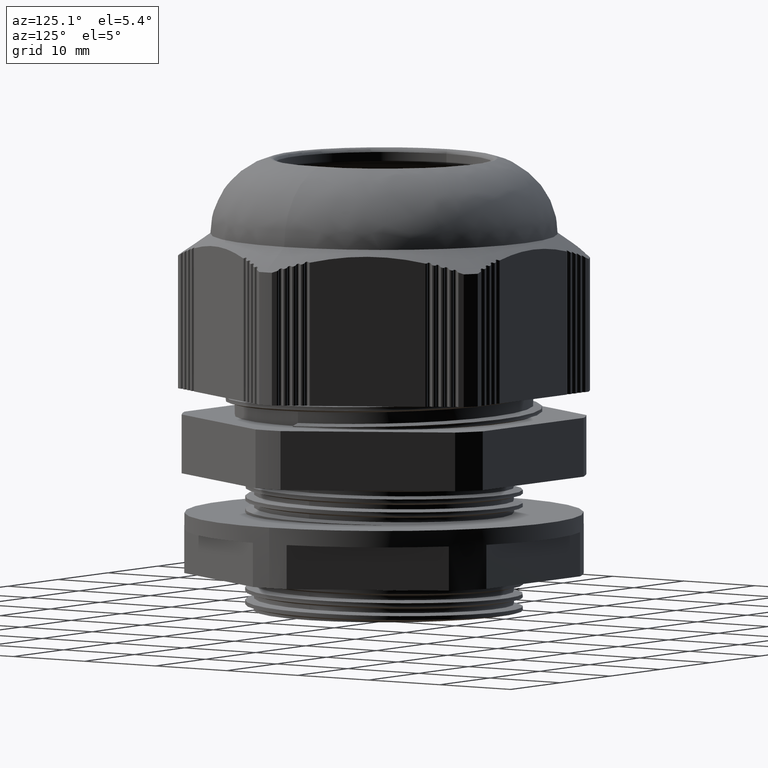
[diagram: clean part render]
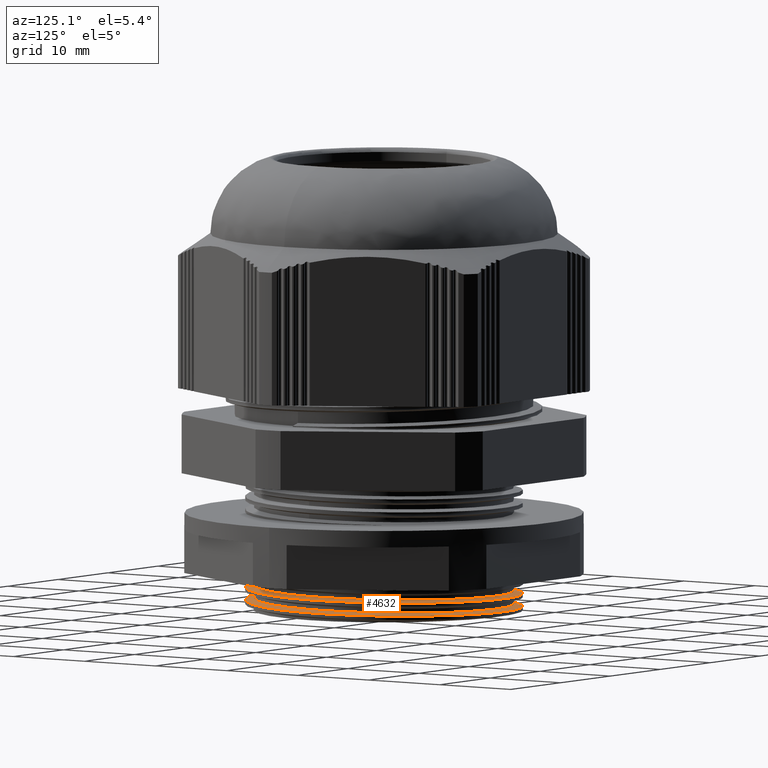
[diagram: same view with one face highlighted and labeled with its STEP entity id]
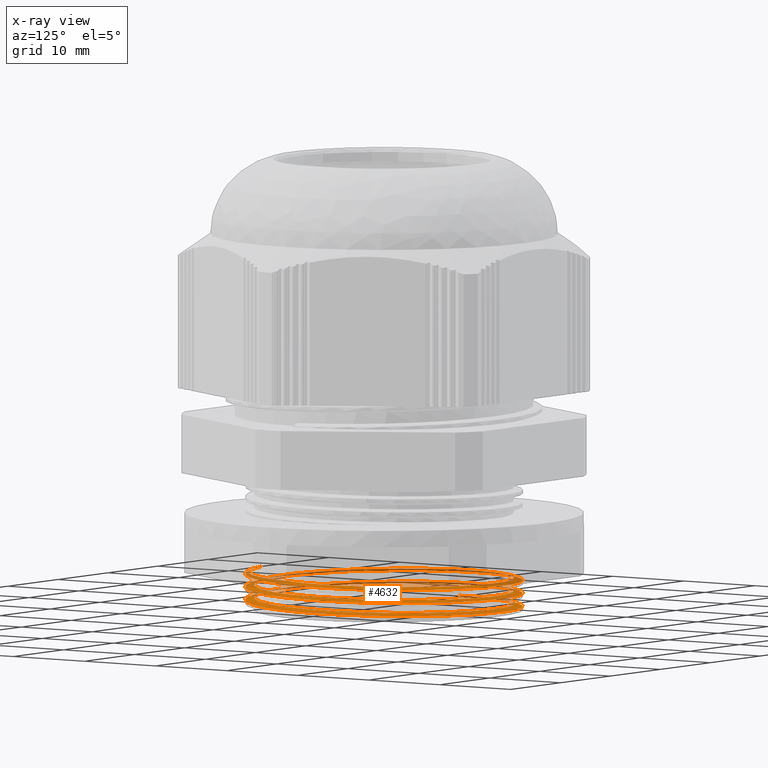
[diagram: x-ray of the same camera — body ghosted, the highlighted face saturated]
A machine part, auxiliary view. The second image highlights one B-rep face of the part: STEP entity #4632.
The next image is the same camera in x-ray: the body ghosted, the highlighted face saturated — about 27% of this face is hidden behind the body in this view.
In plain terms, the highlighted face is a freeform B-spline surface patch.
Its self-contained STEP definition (entity closure, byte-faithful):
#49 = ORIENTED_EDGE ( 'NONE', *, *, #4832, .F. ) ;
#52 = ORIENTED_EDGE ( 'NONE', *, *, #534, .T. ) ;
#60 = ORIENTED_EDGE ( 'NONE', *, *, #568, .T. ) ;
#100 = ORIENTED_EDGE ( 'NONE', *, *, #4771, .F. ) ;
#120 = ORIENTED_EDGE ( 'NONE', *, *, #4809, .T. ) ;
#127 = ORIENTED_EDGE ( 'NONE', *, *, #479, .T. ) ;
#129 = ORIENTED_EDGE ( 'NONE', *, *, #4792, .T. ) ;
#237 = VERTEX_POINT ( 'NONE', #4441 ) ;
#238 = VERTEX_POINT ( 'NONE', #4464 ) ;
#246 = VERTEX_POINT ( 'NONE', #4445 ) ;
#250 = VERTEX_POINT ( 'NONE', #4442 ) ;
#278 = VERTEX_POINT ( 'NONE', #4512 ) ;
#305 = VERTEX_POINT ( 'NONE', #4244 ) ;
#462 = EDGE_CURVE ( 'NONE', #238, #278, #14685, .T. ) ;
#479 = EDGE_CURVE ( 'NONE', #250, #305, #14702, .T. ) ;
#534 = EDGE_CURVE ( 'NONE', #237, #246, #14682, .T. ) ;
#563 = EDGE_CURVE ( 'NONE', #278, #237, #14703, .T. ) ;
#568 = EDGE_CURVE ( 'NONE', #305, #238, #14694, .T. ) ;
#900 = EDGE_LOOP ( 'NONE', ( #100, #49, #129, #127, #60, #1068, #1049, #52, #120 ) ) ;
#1049 = ORIENTED_EDGE ( 'NONE', *, *, #563, .T. ) ;
#1068 = ORIENTED_EDGE ( 'NONE', *, *, #462, .T. ) ;
#1190 = VERTEX_POINT ( 'NONE', #6717 ) ;
#1195 = VERTEX_POINT ( 'NONE', #6728 ) ;
#1230 = VERTEX_POINT ( 'NONE', #6802 ) ;
#2933 = VECTOR ( 'NONE', #11752, 999.9999999999998900 ) ;
#3396 = CARTESIAN_POINT ( 'NONE',  ( -10.60660171779821500, 10.60660171779821500, 2.181846935965578100 ) ) ;
#3397 = CARTESIAN_POINT ( 'NONE',  ( 15.00000000000000000, 1.836970198721029600E-015, 2.744346935965579000 ) ) ;
#3400 = CARTESIAN_POINT ( 'NONE',  ( 6.213203435596423000, 14.99999999999999600, 2.463096935965579400 ) ) ;
#3409 = CARTESIAN_POINT ( 'NONE',  ( -9.184850993605147900E-016, 14.99999999999999600, 2.369346935965577700 ) ) ;
#3418 = CARTESIAN_POINT ( 'NONE',  ( 10.60660171779821500, 10.60660171779821500, 2.556846935965577700 ) ) ;
#3422 = CARTESIAN_POINT ( 'NONE',  ( -15.00000000000000000, 0.0000000000000000000, 1.994346935965576600 ) ) ;
#3423 = CARTESIAN_POINT ( 'NONE',  ( -6.213203435596423900, 14.99999999999999600, 2.275596935965578100 ) ) ;
#3424 = CARTESIAN_POINT ( 'NONE',  ( 15.00000000000000900, 6.213203435596414100, 2.650596935965578500 ) ) ;
#3440 = CARTESIAN_POINT ( 'NONE',  ( -14.99999999999999600, 6.213203435596423900, 2.088096935965576800 ) ) ;
#3449 = CARTESIAN_POINT ( 'NONE',  ( -6.213203435596423900, 14.99999999999999500, 0.7755969359655778800 ) ) ;
#3454 = CARTESIAN_POINT ( 'NONE',  ( -10.60660171779821300, 10.60660171779821300, 0.6818469359655777700 ) ) ;
#3461 = CARTESIAN_POINT ( 'NONE',  ( -14.99999999999999500, 6.213203435596423900, 0.5880969359655778800 ) ) ;
#3462 = CARTESIAN_POINT ( 'NONE',  ( 10.60660171779821300, 10.60660171779821300, 1.056846935965578100 ) ) ;
#3472 = CARTESIAN_POINT ( 'NONE',  ( -15.00000000000000000, -1.836970198721029600E-015, 0.4943469359655738300 ) ) ;
#3482 = CARTESIAN_POINT ( 'NONE',  ( 15.00000000000000000, 1.836970198721029600E-015, 1.244346935965577000 ) ) ;
#3492 = CARTESIAN_POINT ( 'NONE',  ( 14.99999999999999500, 6.213203435596425600, 1.150596935965579000 ) ) ;
#3495 = CARTESIAN_POINT ( 'NONE',  ( -9.184850993605146000E-016, 14.99999999999999500, 0.8693469359655779900 ) ) ;
#3496 = CARTESIAN_POINT ( 'NONE',  ( 6.213203435596423000, 14.99999999999999500, 0.9630969359655779900 ) ) ;
#3547 = CARTESIAN_POINT ( 'NONE',  ( 15.00000000000000000, 1.836970198721029600E-015, 4.244346935965577200 ) ) ;
#3558 = CARTESIAN_POINT ( 'NONE',  ( 10.60660171779821500, 10.60660171779821500, 4.056846935965578100 ) ) ;
#3559 = CARTESIAN_POINT ( 'NONE',  ( 14.99999999999999600, 6.213203435596427400, 4.150596935965578100 ) ) ;
#3560 = CARTESIAN_POINT ( 'NONE',  ( -14.99999999999991700, 6.213203435596506500, 3.588096935965578500 ) ) ;
#3564 = CARTESIAN_POINT ( 'NONE',  ( -9.184850993605146000E-016, 14.99999999999999600, 3.869346935965577200 ) ) ;
#3566 = CARTESIAN_POINT ( 'NONE',  ( -6.213203435596425600, 14.99999999999999600, 3.775596935965577700 ) ) ;
#3580 = CARTESIAN_POINT ( 'NONE',  ( 6.213203435596423900, 14.99999999999999600, 3.963096935965579400 ) ) ;
#3584 = CARTESIAN_POINT ( 'NONE',  ( -15.00000000000000000, 0.0000000000000000000, 3.494346935965576800 ) ) ;
#3586 = CARTESIAN_POINT ( 'NONE',  ( -10.60660171779821500, 10.60660171779821500, 3.681846935965578500 ) ) ;
#3652 = CARTESIAN_POINT ( 'NONE',  ( 15.00000000000000000, 1.836970198721029600E-015, 2.744346935965579000 ) ) ;
#3653 = CARTESIAN_POINT ( 'NONE',  ( 10.60660171779821300, -10.60660171779821300, 2.931846935965578100 ) ) ;
#3654 = CARTESIAN_POINT ( 'NONE',  ( 6.213203435596432700, -14.99999999999999100, 3.025596935965578500 ) ) ;
#3656 = CARTESIAN_POINT ( 'NONE',  ( 2.755455298081543600E-015, -14.99999999999999500, 3.119346935965578100 ) ) ;
#3657 = CARTESIAN_POINT ( 'NONE',  ( -6.213203435596427400, -14.99999999999999300, 3.213096935965578500 ) ) ;
#3658 = CARTESIAN_POINT ( 'NONE',  ( -10.60660171779821100, -10.60660171779821300, 3.306846935965578100 ) ) ;
#3659 = CARTESIAN_POINT ( 'NONE',  ( -15.00000000000000000, 0.0000000000000000000, 3.494346935965576800 ) ) ;
#3663 = CARTESIAN_POINT ( 'NONE',  ( -15.00000000000007300, -6.213203435596352800, 3.400596935965579900 ) ) ;
#3664 = CARTESIAN_POINT ( 'NONE',  ( 14.99999999999998800, -6.213203435596434500, 2.838096935965578500 ) ) ;
#3684 = CARTESIAN_POINT ( 'NONE',  ( -6.213203435596428300, -14.99999999999999500, 1.713096935965577700 ) ) ;
#3686 = CARTESIAN_POINT ( 'NONE',  ( 6.213203435596433600, -14.99999999999999300, 1.525596935965577700 ) ) ;
#3688 = CARTESIAN_POINT ( 'NONE',  ( 2.755455298081543600E-015, -14.99999999999999600, 1.619346935965578500 ) ) ;
#3689 = CARTESIAN_POINT ( 'NONE',  ( -10.60660171779821300, -10.60660171779821500, 1.806846935965577900 ) ) ;
#3697 = CARTESIAN_POINT ( 'NONE',  ( 15.00000000000000000, -6.213203435596422100, 1.338096935965577900 ) ) ;
#3698 = CARTESIAN_POINT ( 'NONE',  ( 15.00000000000000000, 1.836970198721029600E-015, 1.244346935965577000 ) ) ;
#3701 = CARTESIAN_POINT ( 'NONE',  ( -15.00000000000000000, 0.0000000000000000000, 1.994346935965576600 ) ) ;
#3712 = CARTESIAN_POINT ( 'NONE',  ( 10.60660171779821500, -10.60660171779821500, 1.431846935965577700 ) ) ;
#3733 = CARTESIAN_POINT ( 'NONE',  ( -14.99999999999999300, -6.213203435596434500, 1.900596935965578300 ) ) ;
#4244 = CARTESIAN_POINT ( 'NONE',  ( 15.00000000000000000, 1.836970198721029600E-015, 1.244346935965577000 ) ) ;
#4441 = CARTESIAN_POINT ( 'NONE',  ( -15.00000000000000000, 0.0000000000000000000, 3.494346935965576800 ) ) ;
#4442 = CARTESIAN_POINT ( 'NONE',  ( -15.00000000000000000, -1.836970198721029600E-015, 0.4943469359655738300 ) ) ;
#4445 = CARTESIAN_POINT ( 'NONE',  ( 15.00000000000000000, 1.836970198721029600E-015, 4.244346935965577200 ) ) ;
#4464 = CARTESIAN_POINT ( 'NONE',  ( -15.00000000000000000, 0.0000000000000000000, 1.994346935965576600 ) ) ;
#4512 = CARTESIAN_POINT ( 'NONE',  ( 15.00000000000000000, 1.836970198721029600E-015, 2.744346935965579000 ) ) ;
#4632 = ADVANCED_FACE ( 'NONE', ( #8299 ), #6841, .T. ) ;
#4771 = EDGE_CURVE ( 'NONE', #1195, #1230, #11994, .T. ) ;
#4792 = EDGE_CURVE ( 'NONE', #1190, #250, #11732, .T. ) ;
#4809 = EDGE_CURVE ( 'NONE', #246, #1230, #6371, .T. ) ;
#4832 = EDGE_CURVE ( 'NONE', #1190, #1195, #6363, .T. ) ;
#6363 =( BOUNDED_CURVE ( )  B_SPLINE_CURVE ( 2, ( #12181, #12173, #12182, #12198, #12214, #12158, #12199, #12200, #12216, #12187, #12168, #12209, #12211, #12154, #12219, #12188, #12170, #12191, #12151, #12153, #12155, #12159, #12171, #12160, #12161, #12165, #12172, #12174, #12176, #12177, #12183, #10891, #10935, #10933, #10896, #10936, #10905, #10903, #10897, #10911, #10879, #10906, #10926, #10931, #10934 ),
 .UNSPECIFIED., .F., .T. ) 
 B_SPLINE_CURVE_WITH_KNOTS ( ( 3, 2, 2, 2, 2, 2, 2, 2, 2, 2, 2, 2, 2, 2, 2, 2, 2, 2, 2, 2, 2, 2, 3 ),
 ( 0.0000000000000000000, 0.01136363636363636400, 0.02272727272727272800, 0.03409090909090908800, 0.04545454545454545600, 0.05681818181818181600, 0.06818181818181817700, 0.07954545454545454400, 0.09090909090909091200, 0.1022727272727272800, 0.1136363636363636300, 0.1250000000000000000, 0.1363636363636363500, 0.1477272727272727300, 0.1590909090909090900, 0.1704545454545454400, 0.1818181818181818200, 0.1931818181818181800, 0.2045454545454545600, 0.2159090909090909100, 0.2272727272727272700, 0.2386363636363636500, 0.2482778643080118500 ),
 .UNSPECIFIED. ) 
 CURVE ( )  GEOMETRIC_REPRESENTATION_ITEM ( )  RATIONAL_B_SPLINE_CURVE ( ( 1.000000000000000000, 0.9238795325112867400, 1.000000000000000000, 0.9238795325112867400, 1.000000000000000000, 0.9238795325112867400, 1.000000000000000000, 0.9238795325112867400, 1.000000000000000000, 0.9238795325112867400, 1.000000000000000000, 0.9238795325112867400, 1.000000000000000000, 0.9238795325112867400, 1.000000000000000000, 0.9238795325112867400, 1.000000000000000000, 0.9238795325112867400, 1.000000000000000000, 0.9238795325112867400, 1.000000000000000000, 0.9238795325112867400, 1.000000000000000000, 0.9238795325112867400, 1.000000000000000000, 0.9238795325112867400, 1.000000000000000000, 0.9238795325112867400, 1.000000000000000000, 0.9238795325112867400, 1.000000000000000000, 0.9238795325112867400, 1.000000000000000000, 0.9238795325112867400, 1.000000000000000000, 0.9238795325112867400, 1.000000000000000000, 0.9238795325112867400, 1.000000000000000000, 0.9238795325112867400, 1.000000000000000000, 0.9238795325112867400, 1.000000000000000000, 0.9354154326191627100, 0.9804246835996849300 ) ) 
 REPRESENTATION_ITEM ( '' )  );
#6371 =( BOUNDED_CURVE ( )  B_SPLINE_CURVE ( 2, ( #11889, #11871, #11886 ),
 .UNSPECIFIED., .F., .T. ) 
 B_SPLINE_CURVE_WITH_KNOTS ( ( 3, 3 ),
 ( 0.0000000000000000000, 0.005058613032357769200 ),
 .UNSPECIFIED. ) 
 CURVE ( )  GEOMETRIC_REPRESENTATION_ITEM ( )  RATIONAL_B_SPLINE_CURVE ( ( 1.000000000000000000, 0.9673371773690929700, 0.9627051857988668800 ) ) 
 REPRESENTATION_ITEM ( '' )  );
#6717 = CARTESIAN_POINT ( 'NONE',  ( -16.00000000000000000, 0.0000000000000000000, 0.2263977435344573200 ) ) ;
#6728 = CARTESIAN_POINT ( 'NONE',  ( 1.871054091056742600, -15.89022204339322300, 4.324286988929948400 ) ) ;
#6802 = CARTESIAN_POINT ( 'NONE',  ( 14.15974366370257800, -4.949915087982294200, 4.324286988929949300 ) ) ;
#6841 =( BOUNDED_SURFACE ( )  B_SPLINE_SURFACE ( 1, 2, ( 
 ( #8270, #8300, #8290, #8276, #8267, #8244, #8291, #8287, #8278, #8292, #8288, #8283, #8279, #8263, #8284, #8286, #8245, #8285, #8268, #8246, #8289, #8251, #8252, #8293, #8259, #8253, #8254, #8295, #8262, #8264, #8296, #8265, #8271, #8266, #8272, #8273, #8359, #8307, #8343, #8349, #8360, #8334, #8350, #8340, #8351, #8327, #8342, #8335, #8319, #8339, #8358, #8336, #8352, #8314, #8313, #8318, #8341, #8305, #8325, #8322, #8326, #8331, #8324, #8354, #8361, #8302, #8328, #8315, #8320, #8344, #8345, #8316, #8346, #8347, #8364, #8362, #8308, #8329, #8356, #8363, #8301, #8332, #8338, #8330, #8353, #8323, #8306, #8321, #8337, #8317, #8303, #8348, #8355, #8333, #8357, #8304, #8309, #8312, #8310, #8311, #8385, #8387, #8377, #8411, #8396, #8424, #8427, #8371, #8419, #8420, #8428, #8365, #8400, #8376, #8372, #8392, #8423, #8425, #8418, #8374, #8378, #8379, #8384, #8415, #8391, #8405, #8369, #8370, #8383, #8426, #8368, #8366, #8367, #8373, #8386, #8375, #8393, #8394, #8421, #8380, #8381, #8382, #8403, #8422, #8388, #8397, #8389, #8390, #8395, #8417, #8398, #8399, #8401, #8402, #8408, #8404, #8406, #8407, #8409, #8412, #8416, #8410, #8413, #8414, #8458, #8437, #8455, #8467, #8445 ),
 ( #8430, #8463, #8443, #8436, #8456, #8464, #8432, #8474, #8449, #8461, #8489, #8434, #8481, #8446, #8429, #8439, #8476, #8438, #8450, #8477, #8451, #8457, #8452, #8459, #8473, #8487, #8435, #8471, #8478, #8488, #8462, #8479, #8468, #8480, #8460, #8470, #8465, #8447, #8469, #8486, #8466, #8482, #8442, #8441, #8440, #8472, #8433, #8483, #8444, #8475, #8453, #8484, #8485, #8490, #8491, #8492, #8431, #8448, #8454, #8521, #8534, #8536, #8518, #8524, #8497, #8531, #8499, #8505, #8548, #8506, #8540, #8498, #8530, #8500, #8541, #8545, #8494, #8551, #8511, #8546, #8550, #8553, #8532, #8501, #8552, #8495, #8549, #8502, #8509, #8543, #8533, #8522, #8556, #8503, #8537, #8538, #8496, #8512, #8544, #8535, #8547, #8525, #8520, #8507, #8504, #8493, #8508, #8554, #8510, #8527, #8539, #8513, #8514, #8555, #8515, #8516, #8526, #8523, #8517, #8519, #8528, #8529, #8542, #8604, #8600, #8588, #8603, #8601, #8590, #8584, #8574, #8591, #8599, #8614, #8598, #8579, #8615, #8557, #8585, #8612, #8562, #8605, #8570, #8558, #8566, #8602, #8564, #8575, #8606, #8576, #8581, #8577, #8582, #8596, #8610, #8563, #8594, #8607, #8611, #8586, #8608, #8592, #8609, #8580, #8593, #8587, #8572, #8595, #8613 ) ),
 .UNSPECIFIED., .F., .F., .F. ) 
 B_SPLINE_SURFACE_WITH_KNOTS ( ( 2, 2 ),
 ( 3, 2, 2, 2, 2, 2, 2, 2, 2, 2, 2, 2, 2, 2, 2, 2, 2, 2, 2, 2, 2, 2, 2, 2, 2, 2, 2, 2, 2, 2, 2, 2, 2, 2, 2, 2, 2, 2, 2, 2, 2, 2, 2, 2, 2, 2, 2, 2, 2, 2, 2, 2, 2, 2, 2, 2, 2, 2, 2, 2, 2, 2, 2, 2, 2, 2, 2, 2, 2, 2, 2, 2, 2, 2, 2, 2, 2, 2, 2, 2, 2, 2, 2, 2, 3 ),
 ( 0.0000000000000000000, 1.000000000000000000 ),
 ( 0.0000000000000000000, 0.01136363636363636400, 0.02272727272727272800, 0.03409090909090908800, 0.04545454545454545600, 0.05681818181818181600, 0.06818181818181817700, 0.07954545454545454400, 0.09090909090909091200, 0.1022727272727272800, 0.1136363636363636300, 0.1250000000000000000, 0.1363636363636363500, 0.1477272727272727300, 0.1590909090909090900, 0.1704545454545454400, 0.1818181818181818200, 0.1931818181818181800, 0.2045454545454545600, 0.2159090909090909100, 0.2272727272727272700, 0.2386363636363636500, 0.2500000000000000000, 0.2613636363636363500, 0.2727272727272727100, 0.2840909090909091200, 0.2954545454545454700, 0.3068181818181818200, 0.3181818181818181800, 0.3295454545454545300, 0.3409090909090908800, 0.3522727272727272900, 0.3636363636363636500, 0.3750000000000000000, 0.3863636363636363500, 0.3977272727272727100, 0.4090909090909091200, 0.4204545454545454700, 0.4318181818181818200, 0.4431818181818181800, 0.4545454545454545300, 0.4659090909090908800, 0.4772727272727272900, 0.4886363636363636500, 0.5000000000000000000, 0.5113636363636363500, 0.5227272727272727100, 0.5340909090909090600, 0.5454545454545454100, 0.5568181818181817700, 0.5681818181818182300, 0.5795454545454545900, 0.5909090909090909400, 0.6022727272727272900, 0.6136363636363636500, 0.6250000000000000000, 0.6363636363636363500, 0.6477272727272727100, 0.6590909090909090600, 0.6704545454545454100, 0.6818181818181817700, 0.6931818181818182300, 0.7045454545454545900, 0.7159090909090909400, 0.7272727272727272900, 0.7386363636363636500, 0.7500000000000000000, 0.7613636363636363500, 0.7727272727272727100, 0.7840909090909090600, 0.7954545454545454100, 0.8068181818181817700, 0.8181818181818182300, 0.8295454545454545900, 0.8409090909090909400, 0.8522727272727272900, 0.8636363636363636500, 0.8750000000000000000, 0.8863636363636363500, 0.8977272727272727100, 0.9090909090909090600, 0.9204545454545454100, 0.9318181818181817700, 0.9431818181818182300, 0.9545454545454545900 ),
 .UNSPECIFIED. ) 
 GEOMETRIC_REPRESENTATION_ITEM ( )  RATIONAL_B_SPLINE_SURFACE ( (
 ( 1.000000000000000000, 0.9238795325112867400, 1.000000000000000000, 0.9238795325112867400, 1.000000000000000000, 0.9238795325112867400, 1.000000000000000000, 0.9238795325112867400, 1.000000000000000000, 0.9238795325112867400, 1.000000000000000000, 0.9238795325112867400, 1.000000000000000000, 0.9238795325112867400, 1.000000000000000000, 0.9238795325112867400, 1.000000000000000000, 0.9238795325112867400, 1.000000000000000000, 0.9238795325112867400, 1.000000000000000000, 0.9238795325112867400, 1.000000000000000000, 0.9238795325112867400, 1.000000000000000000, 0.9238795325112867400, 1.000000000000000000, 0.9238795325112867400, 1.000000000000000000, 0.9238795325112867400, 1.000000000000000000, 0.9238795325112867400, 1.000000000000000000, 0.9238795325112867400, 1.000000000000000000, 0.9238795325112867400, 1.000000000000000000, 0.9238795325112867400, 1.000000000000000000, 0.9238795325112867400, 1.000000000000000000, 0.9238795325112867400, 1.000000000000000000, 0.9238795325112867400, 1.000000000000000000, 0.9238795325112867400, 1.000000000000000000, 0.9238795325112867400, 1.000000000000000000, 0.9238795325112867400, 1.000000000000000000, 0.9238795325112867400, 1.000000000000000000, 0.9238795325112867400, 1.000000000000000000, 0.9238795325112867400, 1.000000000000000000, 0.9238795325112867400, 1.000000000000000000, 0.9238795325112867400, 1.000000000000000000, 0.9238795325112867400, 1.000000000000000000, 0.9238795325112867400, 1.000000000000000000, 0.9238795325112867400, 1.000000000000000000, 0.9238795325112867400, 1.000000000000000000, 0.9238795325112867400, 1.000000000000000000, 0.9238795325112867400, 1.000000000000000000, 0.9238795325112867400, 1.000000000000000000, 0.9238795325112867400, 1.000000000000000000, 0.9238795325112867400, 1.000000000000000000, 0.9238795325112867400, 1.000000000000000000, 0.9238795325112867400, 1.000000000000000000, 0.9238795325112867400, 1.000000000000000000, 0.9238795325112867400, 1.000000000000000000, 0.9238795325112867400, 1.000000000000000000, 0.9238795325112867400, 1.000000000000000000, 0.9238795325112867400, 1.000000000000000000, 0.9238795325112867400, 1.000000000000000000, 0.9238795325112867400, 1.000000000000000000, 0.9238795325112867400, 1.000000000000000000, 0.9238795325112867400, 1.000000000000000000, 0.9238795325112867400, 1.000000000000000000, 0.9238795325112867400, 1.000000000000000000, 0.9238795325112867400, 1.000000000000000000, 0.9238795325112867400, 1.000000000000000000, 0.9238795325112867400, 1.000000000000000000, 0.9238795325112867400, 1.000000000000000000, 0.9238795325112867400, 1.000000000000000000, 0.9238795325112867400, 1.000000000000000000, 0.9238795325112867400, 1.000000000000000000, 0.9238795325112867400, 1.000000000000000000, 0.9238795325112867400, 1.000000000000000000, 0.9238795325112867400, 1.000000000000000000, 0.9238795325112867400, 1.000000000000000000, 0.9238795325112867400, 1.000000000000000000, 0.9238795325112867400, 1.000000000000000000, 0.9238795325112867400, 1.000000000000000000, 0.9238795325112867400, 1.000000000000000000, 0.9238795325112867400, 1.000000000000000000, 0.9238795325112867400, 1.000000000000000000, 0.9238795325112867400, 1.000000000000000000, 0.9238795325112867400, 1.000000000000000000, 0.9238795325112867400, 1.000000000000000000, 0.9238795325112867400, 1.000000000000000000, 0.9238795325112867400, 1.000000000000000000, 0.9238795325112867400, 1.000000000000000000, 0.9238795325112867400, 1.000000000000000000, 0.9238795325112867400, 1.000000000000000000, 0.9238795325112867400, 1.000000000000000000, 0.9238795325112867400, 1.000000000000000000, 0.9238795325112867400, 1.000000000000000000, 0.9238795325112867400, 1.000000000000000000, 0.9238795325112867400, 1.000000000000000000, 0.9238795325112867400, 1.000000000000000000, 0.9238795325112867400, 1.000000000000000000),
 ( 1.000000000000000000, 0.9238795325112867400, 1.000000000000000000, 0.9238795325112867400, 1.000000000000000000, 0.9238795325112867400, 1.000000000000000000, 0.9238795325112867400, 1.000000000000000000, 0.9238795325112867400, 1.000000000000000000, 0.9238795325112867400, 1.000000000000000000, 0.9238795325112867400, 1.000000000000000000, 0.9238795325112867400, 1.000000000000000000, 0.9238795325112867400, 1.000000000000000000, 0.9238795325112867400, 1.000000000000000000, 0.9238795325112867400, 1.000000000000000000, 0.9238795325112867400, 1.000000000000000000, 0.9238795325112867400, 1.000000000000000000, 0.9238795325112867400, 1.000000000000000000, 0.9238795325112867400, 1.000000000000000000, 0.9238795325112867400, 1.000000000000000000, 0.9238795325112867400, 1.000000000000000000, 0.9238795325112867400, 1.000000000000000000, 0.9238795325112867400, 1.000000000000000000, 0.9238795325112867400, 1.000000000000000000, 0.9238795325112867400, 1.000000000000000000, 0.9238795325112867400, 1.000000000000000000, 0.9238795325112867400, 1.000000000000000000, 0.9238795325112867400, 1.000000000000000000, 0.9238795325112867400, 1.000000000000000000, 0.9238795325112867400, 1.000000000000000000, 0.9238795325112867400, 1.000000000000000000, 0.9238795325112867400, 1.000000000000000000, 0.9238795325112867400, 1.000000000000000000, 0.9238795325112867400, 1.000000000000000000, 0.9238795325112867400, 1.000000000000000000, 0.9238795325112867400, 1.000000000000000000, 0.9238795325112867400, 1.000000000000000000, 0.9238795325112867400, 1.000000000000000000, 0.9238795325112867400, 1.000000000000000000, 0.9238795325112867400, 1.000000000000000000, 0.9238795325112867400, 1.000000000000000000, 0.9238795325112867400, 1.000000000000000000, 0.9238795325112867400, 1.000000000000000000, 0.9238795325112867400, 1.000000000000000000, 0.9238795325112867400, 1.000000000000000000, 0.9238795325112867400, 1.000000000000000000, 0.9238795325112867400, 1.000000000000000000, 0.9238795325112867400, 1.000000000000000000, 0.9238795325112867400, 1.000000000000000000, 0.9238795325112867400, 1.000000000000000000, 0.9238795325112867400, 1.000000000000000000, 0.9238795325112867400, 1.000000000000000000, 0.9238795325112867400, 1.000000000000000000, 0.9238795325112867400, 1.000000000000000000, 0.9238795325112867400, 1.000000000000000000, 0.9238795325112867400, 1.000000000000000000, 0.9238795325112867400, 1.000000000000000000, 0.9238795325112867400, 1.000000000000000000, 0.9238795325112867400, 1.000000000000000000, 0.9238795325112867400, 1.000000000000000000, 0.9238795325112867400, 1.000000000000000000, 0.9238795325112867400, 1.000000000000000000, 0.9238795325112867400, 1.000000000000000000, 0.9238795325112867400, 1.000000000000000000, 0.9238795325112867400, 1.000000000000000000, 0.9238795325112867400, 1.000000000000000000, 0.9238795325112867400, 1.000000000000000000, 0.9238795325112867400, 1.000000000000000000, 0.9238795325112867400, 1.000000000000000000, 0.9238795325112867400, 1.000000000000000000, 0.9238795325112867400, 1.000000000000000000, 0.9238795325112867400, 1.000000000000000000, 0.9238795325112867400, 1.000000000000000000, 0.9238795325112867400, 1.000000000000000000, 0.9238795325112867400, 1.000000000000000000, 0.9238795325112867400, 1.000000000000000000, 0.9238795325112867400, 1.000000000000000000, 0.9238795325112867400, 1.000000000000000000, 0.9238795325112867400, 1.000000000000000000, 0.9238795325112867400, 1.000000000000000000, 0.9238795325112867400, 1.000000000000000000, 0.9238795325112867400, 1.000000000000000000, 0.9238795325112867400, 1.000000000000000000, 0.9238795325112867400, 1.000000000000000000, 0.9238795325112867400, 1.000000000000000000, 0.9238795325112867400, 1.000000000000000000, 0.9238795325112867400, 1.000000000000000000, 0.9238795325112867400, 1.000000000000000000) ) ) 
 REPRESENTATION_ITEM ( '' )  SURFACE ( )  );
#8244 = CARTESIAN_POINT ( 'NONE',  ( 6.627416997969521400, 16.00000000000000000, 0.6951477435344574100 ) ) ;
#8245 = CARTESIAN_POINT ( 'NONE',  ( -16.00000000000000000, 0.0000000000000000000, 1.726397743534457300 ) ) ;
#8246 = CARTESIAN_POINT ( 'NONE',  ( -6.627416997969525000, 16.00000000000000000, 2.007647743534457500 ) ) ;
#8251 = CARTESIAN_POINT ( 'NONE',  ( 6.627416997969521400, 16.00000000000000000, 2.195147743534458400 ) ) ;
#8252 = CARTESIAN_POINT ( 'NONE',  ( 11.31370849898475900, 11.31370849898476100, 2.288897743534458900 ) ) ;
#8253 = CARTESIAN_POINT ( 'NONE',  ( 16.00000000000000400, -6.627416997969517900, 2.570147743534457100 ) ) ;
#8254 = CARTESIAN_POINT ( 'NONE',  ( 11.31370849898476300, -11.31370849898475900, 2.663897743534457100 ) ) ;
#8259 = CARTESIAN_POINT ( 'NONE',  ( 16.00000000000000000, 1.959434878635765100E-015, 2.476397743534457500 ) ) ;
#8262 = CARTESIAN_POINT ( 'NONE',  ( 2.939152317953649100E-015, -16.00000000000000000, 2.851397743534457500 ) ) ;
#8263 = CARTESIAN_POINT ( 'NONE',  ( -6.627416997969525000, -15.99999999999999600, 1.445147743534457500 ) ) ;
#8264 = CARTESIAN_POINT ( 'NONE',  ( -6.627416997969525000, -15.99999999999999600, 2.945147743534459300 ) ) ;
#8265 = CARTESIAN_POINT ( 'NONE',  ( -15.99999999999999600, -6.627416997969533000, 3.132647743534457100 ) ) ;
#8266 = CARTESIAN_POINT ( 'NONE',  ( -16.00000000000000000, 6.627416997969525000, 3.320147743534457500 ) ) ;
#8267 = CARTESIAN_POINT ( 'NONE',  ( -9.797174393178825700E-016, 16.00000000000000000, 0.6013977435344574100 ) ) ;
#8268 = CARTESIAN_POINT ( 'NONE',  ( -11.31370849898476100, 11.31370849898475900, 1.913897743534458200 ) ) ;
#8270 = CARTESIAN_POINT ( 'NONE',  ( -16.00000000000000000, 0.0000000000000000000, 0.2263977435344573500 ) ) ;
#8271 = CARTESIAN_POINT ( 'NONE',  ( -16.00000000000000000, 0.0000000000000000000, 3.226397743534457500 ) ) ;
#8272 = CARTESIAN_POINT ( 'NONE',  ( -11.31370849898476100, 11.31370849898475900, 3.413897743534457500 ) ) ;
#8273 = CARTESIAN_POINT ( 'NONE',  ( -6.627416997969525000, 16.00000000000000000, 3.507647743534457100 ) ) ;
#8276 = CARTESIAN_POINT ( 'NONE',  ( -6.627416997969525000, 16.00000000000000000, 0.5076477435344574100 ) ) ;
#8278 = CARTESIAN_POINT ( 'NONE',  ( 16.00000000000000000, 1.959434878635765100E-015, 0.9763977435344577400 ) ) ;
#8279 = CARTESIAN_POINT ( 'NONE',  ( 2.939152317953649100E-015, -16.00000000000000000, 1.351397743534457300 ) ) ;
#8283 = CARTESIAN_POINT ( 'NONE',  ( 6.627416997969530300, -15.99999999999999600, 1.257647743534457300 ) ) ;
#8284 = CARTESIAN_POINT ( 'NONE',  ( -11.31370849898475800, -11.31370849898476300, 1.538897743534457500 ) ) ;
#8285 = CARTESIAN_POINT ( 'NONE',  ( -16.00000000000000000, 6.627416997969525000, 1.820147743534458200 ) ) ;
#8286 = CARTESIAN_POINT ( 'NONE',  ( -15.99999999999999600, -6.627416997969533000, 1.632647743534457100 ) ) ;
#8287 = CARTESIAN_POINT ( 'NONE',  ( 16.00000000000000000, 6.627416997969525000, 0.8826477435344574100 ) ) ;
#8288 = CARTESIAN_POINT ( 'NONE',  ( 11.31370849898476300, -11.31370849898475900, 1.163897743534458000 ) ) ;
#8289 = CARTESIAN_POINT ( 'NONE',  ( -9.797174393178825700E-016, 16.00000000000000000, 2.101397743534457100 ) ) ;
#8290 = CARTESIAN_POINT ( 'NONE',  ( -11.31370849898476100, 11.31370849898475900, 0.4138977435344573500 ) ) ;
#8291 = CARTESIAN_POINT ( 'NONE',  ( 11.31370849898475900, 11.31370849898476100, 0.7888977435344574100 ) ) ;
#8292 = CARTESIAN_POINT ( 'NONE',  ( 16.00000000000000400, -6.627416997969517900, 1.070147743534457300 ) ) ;
#8293 = CARTESIAN_POINT ( 'NONE',  ( 16.00000000000000000, 6.627416997969525000, 2.382647743534458900 ) ) ;
#8295 = CARTESIAN_POINT ( 'NONE',  ( 6.627416997969530300, -15.99999999999999600, 2.757647743534457500 ) ) ;
#8296 = CARTESIAN_POINT ( 'NONE',  ( -11.31370849898475800, -11.31370849898476300, 3.038897743534457100 ) ) ;
#8299 = FACE_OUTER_BOUND ( 'NONE', #900, .T. ) ;
#8300 = CARTESIAN_POINT ( 'NONE',  ( -16.00000000000000000, 6.627416997969525000, 0.3201477435344573000 ) ) ;
#8301 = CARTESIAN_POINT ( 'NONE',  ( -16.00000000000000000, 0.0000000000000000000, 7.726397743534457500 ) ) ;
#8302 = CARTESIAN_POINT ( 'NONE',  ( -16.00000000000000000, 6.627416997969525000, 6.320147743534457500 ) ) ;
#8303 = CARTESIAN_POINT ( 'NONE',  ( 11.31370849898476300, -11.31370849898475900, 8.663897743534457500 ) ) ;
#8304 = CARTESIAN_POINT ( 'NONE',  ( -15.99999999999999600, -6.627416997969533000, 9.132647743534459300 ) ) ;
#8305 = CARTESIAN_POINT ( 'NONE',  ( 16.00000000000000400, -6.627416997969517900, 5.570147743534460200 ) ) ;
#8306 = CARTESIAN_POINT ( 'NONE',  ( 11.31370849898475900, 11.31370849898476100, 8.288897743534457500 ) ) ;
#8307 = CARTESIAN_POINT ( 'NONE',  ( 6.627416997969521400, 16.00000000000000000, 3.695147743534457100 ) ) ;
#8308 = CARTESIAN_POINT ( 'NONE',  ( 2.939152317953649100E-015, -16.00000000000000000, 7.351397743534457500 ) ) ;
#8309 = CARTESIAN_POINT ( 'NONE',  ( -16.00000000000000000, 0.0000000000000000000, 9.226397743534459300 ) ) ;
#8310 = CARTESIAN_POINT ( 'NONE',  ( -11.31370849898476100, 11.31370849898475900, 9.413897743534457500 ) ) ;
#8311 = CARTESIAN_POINT ( 'NONE',  ( -6.627416997969525000, 16.00000000000000000, 9.507647743534459300 ) ) ;
#8312 = CARTESIAN_POINT ( 'NONE',  ( -16.00000000000000000, 6.627416997969525000, 9.320147743534459300 ) ) ;
#8313 = CARTESIAN_POINT ( 'NONE',  ( 11.31370849898475900, 11.31370849898476100, 5.288897743534457500 ) ) ;
#8314 = CARTESIAN_POINT ( 'NONE',  ( 6.627416997969521400, 16.00000000000000000, 5.195147743534459300 ) ) ;
#8315 = CARTESIAN_POINT ( 'NONE',  ( -6.627416997969525000, 16.00000000000000000, 6.507647743534458400 ) ) ;
#8316 = CARTESIAN_POINT ( 'NONE',  ( 16.00000000000000000, 6.627416997969525000, 6.882647743534457500 ) ) ;
#8317 = CARTESIAN_POINT ( 'NONE',  ( 16.00000000000000400, -6.627416997969517900, 8.570147743534459300 ) ) ;
#8318 = CARTESIAN_POINT ( 'NONE',  ( 16.00000000000000000, 6.627416997969525000, 5.382647743534460200 ) ) ;
#8319 = CARTESIAN_POINT ( 'NONE',  ( -16.00000000000000000, 0.0000000000000000000, 4.726397743534458400 ) ) ;
#8320 = CARTESIAN_POINT ( 'NONE',  ( -9.797174393178825700E-016, 16.00000000000000000, 6.601397743534458400 ) ) ;
#8321 = CARTESIAN_POINT ( 'NONE',  ( 16.00000000000000000, 6.627416997969525000, 8.382647743534457500 ) ) ;
#8322 = CARTESIAN_POINT ( 'NONE',  ( 6.627416997969530300, -15.99999999999999600, 5.757647743534457500 ) ) ;
#8323 = CARTESIAN_POINT ( 'NONE',  ( 6.627416997969521400, 16.00000000000000000, 8.195147743534457500 ) ) ;
#8324 = CARTESIAN_POINT ( 'NONE',  ( -11.31370849898475800, -11.31370849898476300, 6.038897743534457500 ) ) ;
#8325 = CARTESIAN_POINT ( 'NONE',  ( 11.31370849898476300, -11.31370849898475900, 5.663897743534458400 ) ) ;
#8326 = CARTESIAN_POINT ( 'NONE',  ( 2.939152317953649100E-015, -16.00000000000000000, 5.851397743534457500 ) ) ;
#8327 = CARTESIAN_POINT ( 'NONE',  ( -6.627416997969525000, -15.99999999999999600, 4.445147743534458400 ) ) ;
#8328 = CARTESIAN_POINT ( 'NONE',  ( -11.31370849898476100, 11.31370849898475900, 6.413897743534457500 ) ) ;
#8329 = CARTESIAN_POINT ( 'NONE',  ( -6.627416997969525000, -15.99999999999999600, 7.445147743534457500 ) ) ;
#8330 = CARTESIAN_POINT ( 'NONE',  ( -6.627416997969525000, 16.00000000000000000, 8.007647743534459300 ) ) ;
#8331 = CARTESIAN_POINT ( 'NONE',  ( -6.627416997969525000, -15.99999999999999600, 5.945147743534458400 ) ) ;
#8332 = CARTESIAN_POINT ( 'NONE',  ( -16.00000000000000000, 6.627416997969525000, 7.820147743534457500 ) ) ;
#8333 = CARTESIAN_POINT ( 'NONE',  ( -6.627416997969525000, -15.99999999999999600, 8.945147743534459300 ) ) ;
#8334 = CARTESIAN_POINT ( 'NONE',  ( 16.00000000000000400, -6.627416997969517900, 4.070147743534457500 ) ) ;
#8335 = CARTESIAN_POINT ( 'NONE',  ( -15.99999999999999600, -6.627416997969533000, 4.632647743534458400 ) ) ;
#8336 = CARTESIAN_POINT ( 'NONE',  ( -6.627416997969525000, 16.00000000000000000, 5.007647743534462000 ) ) ;
#8337 = CARTESIAN_POINT ( 'NONE',  ( 16.00000000000000000, 1.959434878635765100E-015, 8.476397743534457500 ) ) ;
#8338 = CARTESIAN_POINT ( 'NONE',  ( -11.31370849898476100, 11.31370849898475900, 7.913897743534457500 ) ) ;
#8339 = CARTESIAN_POINT ( 'NONE',  ( -16.00000000000000000, 6.627416997969525000, 4.820147743534460200 ) ) ;
#8340 = CARTESIAN_POINT ( 'NONE',  ( 6.627416997969530300, -15.99999999999999600, 4.257647743534458400 ) ) ;
#8341 = CARTESIAN_POINT ( 'NONE',  ( 16.00000000000000000, 1.959434878635765100E-015, 5.476397743534459300 ) ) ;
#8342 = CARTESIAN_POINT ( 'NONE',  ( -11.31370849898475800, -11.31370849898476300, 4.538897743534461100 ) ) ;
#8343 = CARTESIAN_POINT ( 'NONE',  ( 11.31370849898475900, 11.31370849898476100, 3.788897743534458900 ) ) ;
#8344 = CARTESIAN_POINT ( 'NONE',  ( 6.627416997969521400, 16.00000000000000000, 6.695147743534458400 ) ) ;
#8345 = CARTESIAN_POINT ( 'NONE',  ( 11.31370849898475900, 11.31370849898476100, 6.788897743534457500 ) ) ;
#8346 = CARTESIAN_POINT ( 'NONE',  ( 16.00000000000000000, 1.959434878635765100E-015, 6.976397743534457500 ) ) ;
#8347 = CARTESIAN_POINT ( 'NONE',  ( 16.00000000000000400, -6.627416997969517900, 7.070147743534461100 ) ) ;
#8348 = CARTESIAN_POINT ( 'NONE',  ( 6.627416997969530300, -15.99999999999999600, 8.757647743534459300 ) ) ;
#8349 = CARTESIAN_POINT ( 'NONE',  ( 16.00000000000000000, 6.627416997969525000, 3.882647743534458900 ) ) ;
#8350 = CARTESIAN_POINT ( 'NONE',  ( 11.31370849898476300, -11.31370849898475900, 4.163897743534457500 ) ) ;
#8351 = CARTESIAN_POINT ( 'NONE',  ( 2.939152317953649100E-015, -16.00000000000000000, 4.351397743534457500 ) ) ;
#8352 = CARTESIAN_POINT ( 'NONE',  ( -9.797174393178825700E-016, 16.00000000000000000, 5.101397743534457500 ) ) ;
#8353 = CARTESIAN_POINT ( 'NONE',  ( -9.797174393178825700E-016, 16.00000000000000000, 8.101397743534457500 ) ) ;
#8354 = CARTESIAN_POINT ( 'NONE',  ( -15.99999999999999600, -6.627416997969533000, 6.132647743534457500 ) ) ;
#8355 = CARTESIAN_POINT ( 'NONE',  ( 2.939152317953649100E-015, -16.00000000000000000, 8.851397743534457500 ) ) ;
#8356 = CARTESIAN_POINT ( 'NONE',  ( -11.31370849898475800, -11.31370849898476300, 7.538897743534461100 ) ) ;
#8357 = CARTESIAN_POINT ( 'NONE',  ( -11.31370849898475800, -11.31370849898476300, 9.038897743534464600 ) ) ;
#8358 = CARTESIAN_POINT ( 'NONE',  ( -11.31370849898476100, 11.31370849898475900, 4.913897743534457500 ) ) ;
#8359 = CARTESIAN_POINT ( 'NONE',  ( -9.797174393178825700E-016, 16.00000000000000000, 3.601397743534457100 ) ) ;
#8360 = CARTESIAN_POINT ( 'NONE',  ( 16.00000000000000000, 1.959434878635765100E-015, 3.976397743534457500 ) ) ;
#8361 = CARTESIAN_POINT ( 'NONE',  ( -16.00000000000000000, 0.0000000000000000000, 6.226397743534457500 ) ) ;
#8362 = CARTESIAN_POINT ( 'NONE',  ( 6.627416997969530300, -15.99999999999999600, 7.257647743534457500 ) ) ;
#8363 = CARTESIAN_POINT ( 'NONE',  ( -15.99999999999999600, -6.627416997969533000, 7.632647743534458400 ) ) ;
#8364 = CARTESIAN_POINT ( 'NONE',  ( 11.31370849898476300, -11.31370849898475900, 7.163897743534457500 ) ) ;
#8365 = CARTESIAN_POINT ( 'NONE',  ( -15.99999999999999600, -6.627416997969533000, 10.63264774353445800 ) ) ;
#8366 = CARTESIAN_POINT ( 'NONE',  ( -6.627416997969525000, 16.00000000000000000, 12.50764774353445800 ) ) ;
#8367 = CARTESIAN_POINT ( 'NONE',  ( -9.797174393178825700E-016, 16.00000000000000000, 12.60139774353445800 ) ) ;
#8368 = CARTESIAN_POINT ( 'NONE',  ( -11.31370849898476100, 11.31370849898475900, 12.41389774353445800 ) ) ;
#8369 = CARTESIAN_POINT ( 'NONE',  ( -11.31370849898475800, -11.31370849898476300, 12.03889774353445800 ) ) ;
#8370 = CARTESIAN_POINT ( 'NONE',  ( -15.99999999999999600, -6.627416997969533000, 12.13264774353445800 ) ) ;
#8371 = CARTESIAN_POINT ( 'NONE',  ( 6.627416997969530300, -15.99999999999999600, 10.25764774353445800 ) ) ;
#8372 = CARTESIAN_POINT ( 'NONE',  ( -11.31370849898476100, 11.31370849898475900, 10.91389774353446300 ) ) ;
#8373 = CARTESIAN_POINT ( 'NONE',  ( 6.627416997969521400, 16.00000000000000000, 12.69514774353445800 ) ) ;
#8374 = CARTESIAN_POINT ( 'NONE',  ( 16.00000000000000000, 6.627416997969525000, 11.38264774353446300 ) ) ;
#8375 = CARTESIAN_POINT ( 'NONE',  ( 16.00000000000000000, 6.627416997969525000, 12.88264774353445800 ) ) ;
#8376 = CARTESIAN_POINT ( 'NONE',  ( -16.00000000000000000, 6.627416997969525000, 10.82014774353446300 ) ) ;
#8377 = CARTESIAN_POINT ( 'NONE',  ( 11.31370849898475900, 11.31370849898476100, 9.788897743534457500 ) ) ;
#8378 = CARTESIAN_POINT ( 'NONE',  ( 16.00000000000000000, 1.959434878635765100E-015, 11.47639774353445800 ) ) ;
#8379 = CARTESIAN_POINT ( 'NONE',  ( 16.00000000000000400, -6.627416997969517900, 11.57014774353445800 ) ) ;
#8380 = CARTESIAN_POINT ( 'NONE',  ( 6.627416997969530300, -15.99999999999999600, 13.25764774353446300 ) ) ;
#8381 = CARTESIAN_POINT ( 'NONE',  ( 2.939152317953649100E-015, -16.00000000000000000, 13.35139774353445800 ) ) ;
#8382 = CARTESIAN_POINT ( 'NONE',  ( -6.627416997969525000, -15.99999999999999600, 13.44514774353445800 ) ) ;
#8383 = CARTESIAN_POINT ( 'NONE',  ( -16.00000000000000000, 0.0000000000000000000, 12.22639774353445800 ) ) ;
#8384 = CARTESIAN_POINT ( 'NONE',  ( 11.31370849898476300, -11.31370849898475900, 11.66389774353445800 ) ) ;
#8385 = CARTESIAN_POINT ( 'NONE',  ( -9.797174393178825700E-016, 16.00000000000000000, 9.601397743534457500 ) ) ;
#8386 = CARTESIAN_POINT ( 'NONE',  ( 11.31370849898475900, 11.31370849898476100, 12.78889774353445900 ) ) ;
#8387 = CARTESIAN_POINT ( 'NONE',  ( 6.627416997969521400, 16.00000000000000000, 9.695147743534459300 ) ) ;
#8388 = CARTESIAN_POINT ( 'NONE',  ( -16.00000000000000000, 0.0000000000000000000, 13.72639774353445800 ) ) ;
#8389 = CARTESIAN_POINT ( 'NONE',  ( -11.31370849898476100, 11.31370849898475900, 13.91389774353445800 ) ) ;
#8390 = CARTESIAN_POINT ( 'NONE',  ( -6.627416997969525000, 16.00000000000000000, 14.00764774353445600 ) ) ;
#8391 = CARTESIAN_POINT ( 'NONE',  ( 2.939152317953649100E-015, -16.00000000000000000, 11.85139774353445800 ) ) ;
#8392 = CARTESIAN_POINT ( 'NONE',  ( -6.627416997969525000, 16.00000000000000000, 11.00764774353445900 ) ) ;
#8393 = CARTESIAN_POINT ( 'NONE',  ( 16.00000000000000000, 1.959434878635765100E-015, 12.97639774353446500 ) ) ;
#8394 = CARTESIAN_POINT ( 'NONE',  ( 16.00000000000000400, -6.627416997969517900, 13.07014774353445900 ) ) ;
#8395 = CARTESIAN_POINT ( 'NONE',  ( -9.797174393178825700E-016, 16.00000000000000000, 14.10139774353445800 ) ) ;
#8396 = CARTESIAN_POINT ( 'NONE',  ( 16.00000000000000000, 1.959434878635765100E-015, 9.976397743534457500 ) ) ;
#8397 = CARTESIAN_POINT ( 'NONE',  ( -16.00000000000000000, 6.627416997969525000, 13.82014774353445800 ) ) ;
#8398 = CARTESIAN_POINT ( 'NONE',  ( 11.31370849898475900, 11.31370849898476100, 14.28889774353445800 ) ) ;
#8399 = CARTESIAN_POINT ( 'NONE',  ( 16.00000000000000000, 6.627416997969525000, 14.38264774353445800 ) ) ;
#8400 = CARTESIAN_POINT ( 'NONE',  ( -16.00000000000000000, 0.0000000000000000000, 10.72639774353445800 ) ) ;
#8401 = CARTESIAN_POINT ( 'NONE',  ( 16.00000000000000000, 1.959434878635765100E-015, 14.47639774353445800 ) ) ;
#8402 = CARTESIAN_POINT ( 'NONE',  ( 16.00000000000000400, -6.627416997969517900, 14.57014774353445800 ) ) ;
#8403 = CARTESIAN_POINT ( 'NONE',  ( -11.31370849898475800, -11.31370849898476300, 13.53889774353445800 ) ) ;
#8404 = CARTESIAN_POINT ( 'NONE',  ( 6.627416997969530300, -15.99999999999999600, 14.75764774353445800 ) ) ;
#8405 = CARTESIAN_POINT ( 'NONE',  ( -6.627416997969525000, -15.99999999999999600, 11.94514774353445900 ) ) ;
#8406 = CARTESIAN_POINT ( 'NONE',  ( 2.939152317953649100E-015, -16.00000000000000000, 14.85139774353446300 ) ) ;
#8407 = CARTESIAN_POINT ( 'NONE',  ( -6.627416997969525000, -15.99999999999999600, 14.94514774353445800 ) ) ;
#8408 = CARTESIAN_POINT ( 'NONE',  ( 11.31370849898476300, -11.31370849898475900, 14.66389774353445800 ) ) ;
#8409 = CARTESIAN_POINT ( 'NONE',  ( -11.31370849898475800, -11.31370849898476300, 15.03889774353446500 ) ) ;
#8410 = CARTESIAN_POINT ( 'NONE',  ( -16.00000000000000000, 6.627416997969525000, 15.32014774353445800 ) ) ;
#8411 = CARTESIAN_POINT ( 'NONE',  ( 16.00000000000000000, 6.627416997969525000, 9.882647743534457500 ) ) ;
#8412 = CARTESIAN_POINT ( 'NONE',  ( -15.99999999999999600, -6.627416997969533000, 15.13264774353446500 ) ) ;
#8413 = CARTESIAN_POINT ( 'NONE',  ( -11.31370849898476100, 11.31370849898475900, 15.41389774353445800 ) ) ;
#8414 = CARTESIAN_POINT ( 'NONE',  ( -6.627416997969525000, 16.00000000000000000, 15.50764774353445800 ) ) ;
#8415 = CARTESIAN_POINT ( 'NONE',  ( 6.627416997969530300, -15.99999999999999600, 11.75764774353445600 ) ) ;
#8416 = CARTESIAN_POINT ( 'NONE',  ( -16.00000000000000000, 0.0000000000000000000, 15.22639774353445800 ) ) ;
#8417 = CARTESIAN_POINT ( 'NONE',  ( 6.627416997969521400, 16.00000000000000000, 14.19514774353446800 ) ) ;
#8418 = CARTESIAN_POINT ( 'NONE',  ( 11.31370849898475900, 11.31370849898476100, 11.28889774353445800 ) ) ;
#8419 = CARTESIAN_POINT ( 'NONE',  ( 2.939152317953649100E-015, -16.00000000000000000, 10.35139774353445800 ) ) ;
#8420 = CARTESIAN_POINT ( 'NONE',  ( -6.627416997969525000, -15.99999999999999600, 10.44514774353446100 ) ) ;
#8421 = CARTESIAN_POINT ( 'NONE',  ( 11.31370849898476300, -11.31370849898475900, 13.16389774353445900 ) ) ;
#8422 = CARTESIAN_POINT ( 'NONE',  ( -15.99999999999999600, -6.627416997969533000, 13.63264774353445600 ) ) ;
#8423 = CARTESIAN_POINT ( 'NONE',  ( -9.797174393178825700E-016, 16.00000000000000000, 11.10139774353446500 ) ) ;
#8424 = CARTESIAN_POINT ( 'NONE',  ( 16.00000000000000400, -6.627416997969517900, 10.07014774353446100 ) ) ;
#8425 = CARTESIAN_POINT ( 'NONE',  ( 6.627416997969521400, 16.00000000000000000, 11.19514774353446300 ) ) ;
#8426 = CARTESIAN_POINT ( 'NONE',  ( -16.00000000000000000, 6.627416997969525000, 12.32014774353446500 ) ) ;
#8427 = CARTESIAN_POINT ( 'NONE',  ( 11.31370849898476300, -11.31370849898475900, 10.16389774353445800 ) ) ;
#8428 = CARTESIAN_POINT ( 'NONE',  ( -11.31370849898475800, -11.31370849898476300, 10.53889774353445800 ) ) ;
#8429 = CARTESIAN_POINT ( 'NONE',  ( -10.59168351678796300, -10.59168351678796300, 1.812500000000000000 ) ) ;
#8430 = CARTESIAN_POINT ( 'NONE',  ( -14.97890247780509100, 0.0000000000000000000, 0.5000000000000000000 ) ) ;
#8431 = CARTESIAN_POINT ( 'NONE',  ( 14.97890247780509100, 1.834386497418436200E-015, 5.750000000000000000 ) ) ;
#8432 = CARTESIAN_POINT ( 'NONE',  ( 10.59168351678796300, 10.59168351678796300, 1.062500000000000000 ) ) ;
#8433 = CARTESIAN_POINT ( 'NONE',  ( -10.59168351678796300, -10.59168351678796300, 4.812500000000000900 ) ) ;
#8434 = CARTESIAN_POINT ( 'NONE',  ( 6.204464555770837100, -14.97890247780508600, 1.531250000000000000 ) ) ;
#8435 = CARTESIAN_POINT ( 'NONE',  ( 10.59168351678796300, -10.59168351678796300, 2.937500000000000000 ) ) ;
#8436 = CARTESIAN_POINT ( 'NONE',  ( -6.204464555770828200, 14.97890247780508900, 0.7812500000000000000 ) ) ;
#8437 = CARTESIAN_POINT ( 'NONE',  ( 6.627416997969521400, 16.00000000000000000, 15.69514774353445600 ) ) ;
#8438 = CARTESIAN_POINT ( 'NONE',  ( -14.97890247780508900, 6.204464555770827300, 2.093749999999999100 ) ) ;
#8439 = CARTESIAN_POINT ( 'NONE',  ( -14.97890247780508600, -6.204464555770838000, 1.906250000000000900 ) ) ;
#8440 = CARTESIAN_POINT ( 'NONE',  ( 2.751579746127654300E-015, -14.97890247780509100, 4.625000000000000900 ) ) ;
#8441 = CARTESIAN_POINT ( 'NONE',  ( 6.204464555770837100, -14.97890247780508600, 4.531250000000000000 ) ) ;
#8442 = CARTESIAN_POINT ( 'NONE',  ( 10.59168351678796300, -10.59168351678796300, 4.437500000000001800 ) ) ;
#8443 = CARTESIAN_POINT ( 'NONE',  ( -10.59168351678796300, 10.59168351678796300, 0.6875000000000000000 ) ) ;
#8444 = CARTESIAN_POINT ( 'NONE',  ( -14.97890247780509100, 0.0000000000000000000, 5.000000000000000900 ) ) ;
#8445 = CARTESIAN_POINT ( 'NONE',  ( 16.00000000000000000, 1.959434878635765100E-015, 15.97639774353445600 ) ) ;
#8446 = CARTESIAN_POINT ( 'NONE',  ( -6.204464555770830900, -14.97890247780508800, 1.718750000000000000 ) ) ;
#8447 = CARTESIAN_POINT ( 'NONE',  ( 6.204464555770826500, 14.97890247780508900, 3.968750000000001800 ) ) ;
#8448 = CARTESIAN_POINT ( 'NONE',  ( 14.97890247780509500, -6.204464555770825600, 5.843750000000000000 ) ) ;
#8449 = CARTESIAN_POINT ( 'NONE',  ( 14.97890247780509100, 1.834386497418436200E-015, 1.250000000000000000 ) ) ;
#8450 = CARTESIAN_POINT ( 'NONE',  ( -10.59168351678796300, 10.59168351678796300, 2.187500000000000000 ) ) ;
#8451 = CARTESIAN_POINT ( 'NONE',  ( -9.171932487092180900E-016, 14.97890247780509100, 2.375000000000000000 ) ) ;
#8452 = CARTESIAN_POINT ( 'NONE',  ( 10.59168351678796300, 10.59168351678796300, 2.562500000000000000 ) ) ;
#8453 = CARTESIAN_POINT ( 'NONE',  ( -10.59168351678796300, 10.59168351678796300, 5.187499999999999100 ) ) ;
#8454 = CARTESIAN_POINT ( 'NONE',  ( 10.59168351678796300, -10.59168351678796300, 5.937500000000000000 ) ) ;
#8455 = CARTESIAN_POINT ( 'NONE',  ( 11.31370849898475900, 11.31370849898476100, 15.78889774353445600 ) ) ;
#8456 = CARTESIAN_POINT ( 'NONE',  ( -9.171932487092180900E-016, 14.97890247780509100, 0.8750000000000000000 ) ) ;
#8457 = CARTESIAN_POINT ( 'NONE',  ( 6.204464555770826500, 14.97890247780508900, 2.468750000000002200 ) ) ;
#8458 = CARTESIAN_POINT ( 'NONE',  ( -9.797174393178825700E-016, 16.00000000000000000, 15.60139774353445800 ) ) ;
#8459 = CARTESIAN_POINT ( 'NONE',  ( 14.97890247780508900, 6.204464555770829100, 2.656250000000000900 ) ) ;
#8460 = CARTESIAN_POINT ( 'NONE',  ( -10.59168351678796300, 10.59168351678796300, 3.687500000000000900 ) ) ;
#8461 = CARTESIAN_POINT ( 'NONE',  ( 14.97890247780509500, -6.204464555770825600, 1.343750000000000000 ) ) ;
#8462 = CARTESIAN_POINT ( 'NONE',  ( -10.59168351678796300, -10.59168351678796300, 3.312500000000000000 ) ) ;
#8463 = CARTESIAN_POINT ( 'NONE',  ( -14.97890247780508900, 6.204464555770827300, 0.5937500000000002200 ) ) ;
#8464 = CARTESIAN_POINT ( 'NONE',  ( 6.204464555770826500, 14.97890247780508900, 0.9687500000000000000 ) ) ;
#8465 = CARTESIAN_POINT ( 'NONE',  ( -9.171932487092180900E-016, 14.97890247780509100, 3.875000000000000000 ) ) ;
#8466 = CARTESIAN_POINT ( 'NONE',  ( 14.97890247780509100, 1.834386497418436200E-015, 4.250000000000000000 ) ) ;
#8467 = CARTESIAN_POINT ( 'NONE',  ( 16.00000000000000000, 6.627416997969525000, 15.88264774353445600 ) ) ;
#8468 = CARTESIAN_POINT ( 'NONE',  ( -14.97890247780509100, 0.0000000000000000000, 3.500000000000000000 ) ) ;
#8469 = CARTESIAN_POINT ( 'NONE',  ( 10.59168351678796300, 10.59168351678796300, 4.062500000000000000 ) ) ;
#8470 = CARTESIAN_POINT ( 'NONE',  ( -6.204464555770828200, 14.97890247780508900, 3.781250000000000000 ) ) ;
#8471 = CARTESIAN_POINT ( 'NONE',  ( 6.204464555770837100, -14.97890247780508600, 3.031250000000000000 ) ) ;
#8472 = CARTESIAN_POINT ( 'NONE',  ( -6.204464555770830900, -14.97890247780508800, 4.718750000000000900 ) ) ;
#8473 = CARTESIAN_POINT ( 'NONE',  ( 14.97890247780509100, 1.834386497418436200E-015, 2.750000000000001800 ) ) ;
#8474 = CARTESIAN_POINT ( 'NONE',  ( 14.97890247780508900, 6.204464555770829100, 1.156250000000001100 ) ) ;
#8475 = CARTESIAN_POINT ( 'NONE',  ( -14.97890247780508900, 6.204464555770827300, 5.093749999999999100 ) ) ;
#8476 = CARTESIAN_POINT ( 'NONE',  ( -14.97890247780509100, 0.0000000000000000000, 2.000000000000000000 ) ) ;
#8477 = CARTESIAN_POINT ( 'NONE',  ( -6.204464555770828200, 14.97890247780508900, 2.281250000000000400 ) ) ;
#8478 = CARTESIAN_POINT ( 'NONE',  ( 2.751579746127654300E-015, -14.97890247780509100, 3.125000000000000000 ) ) ;
#8479 = CARTESIAN_POINT ( 'NONE',  ( -14.97890247780508600, -6.204464555770838000, 3.406250000000000000 ) ) ;
#8480 = CARTESIAN_POINT ( 'NONE',  ( -14.97890247780508900, 6.204464555770827300, 3.593750000000000000 ) ) ;
#8481 = CARTESIAN_POINT ( 'NONE',  ( 2.751579746127654300E-015, -14.97890247780509100, 1.625000000000000900 ) ) ;
#8482 = CARTESIAN_POINT ( 'NONE',  ( 14.97890247780509500, -6.204464555770825600, 4.343750000000000000 ) ) ;
#8483 = CARTESIAN_POINT ( 'NONE',  ( -14.97890247780508600, -6.204464555770838000, 4.906250000000000900 ) ) ;
#8484 = CARTESIAN_POINT ( 'NONE',  ( -6.204464555770828200, 14.97890247780508900, 5.281249999999999100 ) ) ;
#8485 = CARTESIAN_POINT ( 'NONE',  ( -9.171932487092180900E-016, 14.97890247780509100, 5.375000000000000000 ) ) ;
#8486 = CARTESIAN_POINT ( 'NONE',  ( 14.97890247780508900, 6.204464555770829100, 4.156250000000000000 ) ) ;
#8487 = CARTESIAN_POINT ( 'NONE',  ( 14.97890247780509500, -6.204464555770825600, 2.843750000000000000 ) ) ;
#8488 = CARTESIAN_POINT ( 'NONE',  ( -6.204464555770830900, -14.97890247780508800, 3.218750000000000400 ) ) ;
#8489 = CARTESIAN_POINT ( 'NONE',  ( 10.59168351678796300, -10.59168351678796300, 1.437500000000000000 ) ) ;
#8490 = CARTESIAN_POINT ( 'NONE',  ( 6.204464555770826500, 14.97890247780508900, 5.468749999999999100 ) ) ;
#8491 = CARTESIAN_POINT ( 'NONE',  ( 10.59168351678796300, 10.59168351678796300, 5.562500000000000000 ) ) ;
#8492 = CARTESIAN_POINT ( 'NONE',  ( 14.97890247780508900, 6.204464555770829100, 5.656249999999999100 ) ) ;
#8493 = CARTESIAN_POINT ( 'NONE',  ( 14.97890247780509500, -6.204464555770825600, 10.34375000000000000 ) ) ;
#8494 = CARTESIAN_POINT ( 'NONE',  ( 2.751579746127654300E-015, -14.97890247780509100, 7.625000000000000000 ) ) ;
#8495 = CARTESIAN_POINT ( 'NONE',  ( 6.204464555770826500, 14.97890247780508900, 8.468750000000000000 ) ) ;
#8496 = CARTESIAN_POINT ( 'NONE',  ( -14.97890247780509100, 0.0000000000000000000, 9.500000000000001800 ) ) ;
#8497 = CARTESIAN_POINT ( 'NONE',  ( -14.97890247780509100, 0.0000000000000000000, 6.500000000000003600 ) ) ;
#8498 = CARTESIAN_POINT ( 'NONE',  ( 14.97890247780508900, 6.204464555770829100, 7.156250000000000900 ) ) ;
#8499 = CARTESIAN_POINT ( 'NONE',  ( -10.59168351678796300, 10.59168351678796300, 6.687500000000000900 ) ) ;
#8500 = CARTESIAN_POINT ( 'NONE',  ( 14.97890247780509500, -6.204464555770825600, 7.343749999999999100 ) ) ;
#8501 = CARTESIAN_POINT ( 'NONE',  ( -6.204464555770828200, 14.97890247780508900, 8.281250000000000000 ) ) ;
#8502 = CARTESIAN_POINT ( 'NONE',  ( 14.97890247780508900, 6.204464555770829100, 8.656250000000003600 ) ) ;
#8503 = CARTESIAN_POINT ( 'NONE',  ( -6.204464555770830900, -14.97890247780508800, 9.218750000000000000 ) ) ;
#8504 = CARTESIAN_POINT ( 'NONE',  ( 14.97890247780509100, 1.834386497418436200E-015, 10.25000000000000000 ) ) ;
#8505 = CARTESIAN_POINT ( 'NONE',  ( -6.204464555770828200, 14.97890247780508900, 6.781250000000000900 ) ) ;
#8506 = CARTESIAN_POINT ( 'NONE',  ( 6.204464555770826500, 14.97890247780508900, 6.968750000000000900 ) ) ;
#8507 = CARTESIAN_POINT ( 'NONE',  ( 14.97890247780508900, 6.204464555770829100, 10.15625000000000000 ) ) ;
#8508 = CARTESIAN_POINT ( 'NONE',  ( 10.59168351678796300, -10.59168351678796300, 10.43750000000000000 ) ) ;
#8509 = CARTESIAN_POINT ( 'NONE',  ( 14.97890247780509100, 1.834386497418436200E-015, 8.750000000000000000 ) ) ;
#8510 = CARTESIAN_POINT ( 'NONE',  ( 2.751579746127654300E-015, -14.97890247780509100, 10.62500000000000000 ) ) ;
#8511 = CARTESIAN_POINT ( 'NONE',  ( -10.59168351678796300, -10.59168351678796300, 7.812500000000000000 ) ) ;
#8512 = CARTESIAN_POINT ( 'NONE',  ( -14.97890247780508900, 6.204464555770827300, 9.593749999999998200 ) ) ;
#8513 = CARTESIAN_POINT ( 'NONE',  ( -14.97890247780508600, -6.204464555770838000, 10.90625000000000200 ) ) ;
#8514 = CARTESIAN_POINT ( 'NONE',  ( -14.97890247780509100, 0.0000000000000000000, 11.00000000000000700 ) ) ;
#8515 = CARTESIAN_POINT ( 'NONE',  ( -10.59168351678796300, 10.59168351678796300, 11.18750000000000200 ) ) ;
#8516 = CARTESIAN_POINT ( 'NONE',  ( -6.204464555770828200, 14.97890247780508900, 11.28125000000000200 ) ) ;
#8517 = CARTESIAN_POINT ( 'NONE',  ( 10.59168351678796300, 10.59168351678796300, 11.56250000000000000 ) ) ;
#8518 = CARTESIAN_POINT ( 'NONE',  ( -10.59168351678796300, -10.59168351678796300, 6.312500000000000000 ) ) ;
#8519 = CARTESIAN_POINT ( 'NONE',  ( 14.97890247780508900, 6.204464555770829100, 11.65624999999999800 ) ) ;
#8520 = CARTESIAN_POINT ( 'NONE',  ( 10.59168351678796300, 10.59168351678796300, 10.06250000000000000 ) ) ;
#8521 = CARTESIAN_POINT ( 'NONE',  ( 6.204464555770837100, -14.97890247780508600, 6.031250000000000000 ) ) ;
#8522 = CARTESIAN_POINT ( 'NONE',  ( 6.204464555770837100, -14.97890247780508600, 9.031250000000001800 ) ) ;
#8523 = CARTESIAN_POINT ( 'NONE',  ( 6.204464555770826500, 14.97890247780508900, 11.46875000000000000 ) ) ;
#8524 = CARTESIAN_POINT ( 'NONE',  ( -14.97890247780508600, -6.204464555770838000, 6.406250000000000000 ) ) ;
#8525 = CARTESIAN_POINT ( 'NONE',  ( 6.204464555770826500, 14.97890247780508900, 9.968750000000000000 ) ) ;
#8526 = CARTESIAN_POINT ( 'NONE',  ( -9.171932487092180900E-016, 14.97890247780509100, 11.37500000000000200 ) ) ;
#8527 = CARTESIAN_POINT ( 'NONE',  ( -6.204464555770830900, -14.97890247780508800, 10.71875000000000000 ) ) ;
#8528 = CARTESIAN_POINT ( 'NONE',  ( 14.97890247780509100, 1.834386497418436200E-015, 11.75000000000000000 ) ) ;
#8529 = CARTESIAN_POINT ( 'NONE',  ( 14.97890247780509500, -6.204464555770825600, 11.84375000000000200 ) ) ;
#8530 = CARTESIAN_POINT ( 'NONE',  ( 14.97890247780509100, 1.834386497418436200E-015, 7.249999999999999100 ) ) ;
#8531 = CARTESIAN_POINT ( 'NONE',  ( -14.97890247780508900, 6.204464555770827300, 6.593750000000000000 ) ) ;
#8532 = CARTESIAN_POINT ( 'NONE',  ( -10.59168351678796300, 10.59168351678796300, 8.187500000000000000 ) ) ;
#8533 = CARTESIAN_POINT ( 'NONE',  ( 10.59168351678796300, -10.59168351678796300, 8.937500000000005300 ) ) ;
#8534 = CARTESIAN_POINT ( 'NONE',  ( 2.751579746127654300E-015, -14.97890247780509100, 6.125000000000000000 ) ) ;
#8535 = CARTESIAN_POINT ( 'NONE',  ( -6.204464555770828200, 14.97890247780508900, 9.781250000000000000 ) ) ;
#8536 = CARTESIAN_POINT ( 'NONE',  ( -6.204464555770830900, -14.97890247780508800, 6.218750000000000000 ) ) ;
#8537 = CARTESIAN_POINT ( 'NONE',  ( -10.59168351678796300, -10.59168351678796300, 9.312500000000001800 ) ) ;
#8538 = CARTESIAN_POINT ( 'NONE',  ( -14.97890247780508600, -6.204464555770838000, 9.406250000000008900 ) ) ;
#8539 = CARTESIAN_POINT ( 'NONE',  ( -10.59168351678796300, -10.59168351678796300, 10.81250000000000400 ) ) ;
#8540 = CARTESIAN_POINT ( 'NONE',  ( 10.59168351678796300, 10.59168351678796300, 7.062499999999999100 ) ) ;
#8541 = CARTESIAN_POINT ( 'NONE',  ( 10.59168351678796300, -10.59168351678796300, 7.437500000000002700 ) ) ;
#8542 = CARTESIAN_POINT ( 'NONE',  ( 10.59168351678796300, -10.59168351678796300, 11.93750000000000000 ) ) ;
#8543 = CARTESIAN_POINT ( 'NONE',  ( 14.97890247780509500, -6.204464555770825600, 8.843750000000000000 ) ) ;
#8544 = CARTESIAN_POINT ( 'NONE',  ( -10.59168351678796300, 10.59168351678796300, 9.687500000000000000 ) ) ;
#8545 = CARTESIAN_POINT ( 'NONE',  ( 6.204464555770837100, -14.97890247780508600, 7.531249999999999100 ) ) ;
#8546 = CARTESIAN_POINT ( 'NONE',  ( -14.97890247780508600, -6.204464555770838000, 7.906250000000000900 ) ) ;
#8547 = CARTESIAN_POINT ( 'NONE',  ( -9.171932487092180900E-016, 14.97890247780509100, 9.875000000000000000 ) ) ;
#8548 = CARTESIAN_POINT ( 'NONE',  ( -9.171932487092180900E-016, 14.97890247780509100, 6.875000000000000900 ) ) ;
#8549 = CARTESIAN_POINT ( 'NONE',  ( 10.59168351678796300, 10.59168351678796300, 8.562500000000000000 ) ) ;
#8550 = CARTESIAN_POINT ( 'NONE',  ( -14.97890247780509100, 0.0000000000000000000, 8.000000000000000000 ) ) ;
#8551 = CARTESIAN_POINT ( 'NONE',  ( -6.204464555770830900, -14.97890247780508800, 7.718749999999999100 ) ) ;
#8552 = CARTESIAN_POINT ( 'NONE',  ( -9.171932487092180900E-016, 14.97890247780509100, 8.375000000000000000 ) ) ;
#8553 = CARTESIAN_POINT ( 'NONE',  ( -14.97890247780508900, 6.204464555770827300, 8.093750000000001800 ) ) ;
#8554 = CARTESIAN_POINT ( 'NONE',  ( 6.204464555770837100, -14.97890247780508600, 10.53125000000000000 ) ) ;
#8555 = CARTESIAN_POINT ( 'NONE',  ( -14.97890247780508900, 6.204464555770827300, 11.09375000000000000 ) ) ;
#8556 = CARTESIAN_POINT ( 'NONE',  ( 2.751579746127654300E-015, -14.97890247780509100, 9.125000000000001800 ) ) ;
#8557 = CARTESIAN_POINT ( 'NONE',  ( 14.97890247780509500, -6.204464555770825600, 13.34375000000000200 ) ) ;
#8558 = CARTESIAN_POINT ( 'NONE',  ( -14.97890247780508600, -6.204464555770838000, 13.90625000000000000 ) ) ;
#8562 = CARTESIAN_POINT ( 'NONE',  ( 2.751579746127654300E-015, -14.97890247780509100, 13.62500000000000000 ) ) ;
#8563 = CARTESIAN_POINT ( 'NONE',  ( 6.204464555770837100, -14.97890247780508600, 15.03125000000000200 ) ) ;
#8564 = CARTESIAN_POINT ( 'NONE',  ( -10.59168351678796300, 10.59168351678796300, 14.18750000000000000 ) ) ;
#8566 = CARTESIAN_POINT ( 'NONE',  ( -14.97890247780509100, 0.0000000000000000000, 14.00000000000000000 ) ) ;
#8570 = CARTESIAN_POINT ( 'NONE',  ( -10.59168351678796300, -10.59168351678796300, 13.81250000000000000 ) ) ;
#8572 = CARTESIAN_POINT ( 'NONE',  ( 10.59168351678796300, 10.59168351678796300, 16.06250000000000000 ) ) ;
#8574 = CARTESIAN_POINT ( 'NONE',  ( -10.59168351678796300, 10.59168351678796300, 12.68750000000000000 ) ) ;
#8575 = CARTESIAN_POINT ( 'NONE',  ( -6.204464555770828200, 14.97890247780508900, 14.28125000000000000 ) ) ;
#8576 = CARTESIAN_POINT ( 'NONE',  ( 6.204464555770826500, 14.97890247780508900, 14.46875000000000200 ) ) ;
#8577 = CARTESIAN_POINT ( 'NONE',  ( 14.97890247780508900, 6.204464555770829100, 14.65625000000000000 ) ) ;
#8579 = CARTESIAN_POINT ( 'NONE',  ( 14.97890247780508900, 6.204464555770829100, 13.15625000000000200 ) ) ;
#8580 = CARTESIAN_POINT ( 'NONE',  ( -6.204464555770828200, 14.97890247780508900, 15.78124999999999800 ) ) ;
#8581 = CARTESIAN_POINT ( 'NONE',  ( 10.59168351678796300, 10.59168351678796300, 14.56250000000000000 ) ) ;
#8582 = CARTESIAN_POINT ( 'NONE',  ( 14.97890247780509100, 1.834386497418436200E-015, 14.75000000000000400 ) ) ;
#8584 = CARTESIAN_POINT ( 'NONE',  ( -14.97890247780508900, 6.204464555770827300, 12.59375000000000000 ) ) ;
#8585 = CARTESIAN_POINT ( 'NONE',  ( 10.59168351678796300, -10.59168351678796300, 13.43750000000000200 ) ) ;
#8586 = CARTESIAN_POINT ( 'NONE',  ( -14.97890247780508600, -6.204464555770838000, 15.40625000000000400 ) ) ;
#8587 = CARTESIAN_POINT ( 'NONE',  ( 6.204464555770826500, 14.97890247780508900, 15.96875000000000200 ) ) ;
#8588 = CARTESIAN_POINT ( 'NONE',  ( -6.204464555770830900, -14.97890247780508800, 12.21875000000000200 ) ) ;
#8590 = CARTESIAN_POINT ( 'NONE',  ( -14.97890247780509100, 0.0000000000000000000, 12.50000000000000000 ) ) ;
#8591 = CARTESIAN_POINT ( 'NONE',  ( -6.204464555770828200, 14.97890247780508900, 12.78125000000000200 ) ) ;
#8592 = CARTESIAN_POINT ( 'NONE',  ( -14.97890247780508900, 6.204464555770827300, 15.59375000000000700 ) ) ;
#8593 = CARTESIAN_POINT ( 'NONE',  ( -9.171932487092180900E-016, 14.97890247780509100, 15.87500000000000000 ) ) ;
#8594 = CARTESIAN_POINT ( 'NONE',  ( 2.751579746127654300E-015, -14.97890247780509100, 15.12500000000000200 ) ) ;
#8595 = CARTESIAN_POINT ( 'NONE',  ( 14.97890247780508900, 6.204464555770829100, 16.15625000000000000 ) ) ;
#8596 = CARTESIAN_POINT ( 'NONE',  ( 14.97890247780509500, -6.204464555770825600, 14.84375000000000500 ) ) ;
#8598 = CARTESIAN_POINT ( 'NONE',  ( 10.59168351678796300, 10.59168351678796300, 13.06250000000000200 ) ) ;
#8599 = CARTESIAN_POINT ( 'NONE',  ( -9.171932487092180900E-016, 14.97890247780509100, 12.87500000000000700 ) ) ;
#8600 = CARTESIAN_POINT ( 'NONE',  ( 2.751579746127654300E-015, -14.97890247780509100, 12.12500000000000000 ) ) ;
#8601 = CARTESIAN_POINT ( 'NONE',  ( -14.97890247780508600, -6.204464555770838000, 12.40625000000000000 ) ) ;
#8602 = CARTESIAN_POINT ( 'NONE',  ( -14.97890247780508900, 6.204464555770827300, 14.09375000000000400 ) ) ;
#8603 = CARTESIAN_POINT ( 'NONE',  ( -10.59168351678796300, -10.59168351678796300, 12.31250000000000000 ) ) ;
#8604 = CARTESIAN_POINT ( 'NONE',  ( 6.204464555770837100, -14.97890247780508600, 12.03125000000000000 ) ) ;
#8605 = CARTESIAN_POINT ( 'NONE',  ( -6.204464555770830900, -14.97890247780508800, 13.71875000000000400 ) ) ;
#8606 = CARTESIAN_POINT ( 'NONE',  ( -9.171932487092180900E-016, 14.97890247780509100, 14.37500000000000000 ) ) ;
#8607 = CARTESIAN_POINT ( 'NONE',  ( -6.204464555770830900, -14.97890247780508800, 15.21875000000000500 ) ) ;
#8608 = CARTESIAN_POINT ( 'NONE',  ( -14.97890247780509100, 0.0000000000000000000, 15.50000000000000000 ) ) ;
#8609 = CARTESIAN_POINT ( 'NONE',  ( -10.59168351678796300, 10.59168351678796300, 15.68750000000000000 ) ) ;
#8610 = CARTESIAN_POINT ( 'NONE',  ( 10.59168351678796300, -10.59168351678796300, 14.93750000000000700 ) ) ;
#8611 = CARTESIAN_POINT ( 'NONE',  ( -10.59168351678796300, -10.59168351678796300, 15.31250000000000200 ) ) ;
#8612 = CARTESIAN_POINT ( 'NONE',  ( 6.204464555770837100, -14.97890247780508600, 13.53125000000000000 ) ) ;
#8613 = CARTESIAN_POINT ( 'NONE',  ( 14.97890247780509100, 1.834386497418436200E-015, 16.25000000000000000 ) ) ;
#8614 = CARTESIAN_POINT ( 'NONE',  ( 6.204464555770826500, 14.97890247780508900, 12.96875000000000200 ) ) ;
#8615 = CARTESIAN_POINT ( 'NONE',  ( 14.97890247780509100, 1.834386497418436200E-015, 13.25000000000000200 ) ) ;
#10879 = CARTESIAN_POINT ( 'NONE',  ( 16.00000000000000000, 1.959434878635765100E-015, 3.976397743534457500 ) ) ;
#10891 = CARTESIAN_POINT ( 'NONE',  ( -15.99999999999999600, -6.627416997969532100, 3.132647743534457100 ) ) ;
#10896 = CARTESIAN_POINT ( 'NONE',  ( -11.31370849898476100, 11.31370849898475900, 3.413897743534457500 ) ) ;
#10897 = CARTESIAN_POINT ( 'NONE',  ( 11.31370849898475900, 11.31370849898476100, 3.788897743534458900 ) ) ;
#10903 = CARTESIAN_POINT ( 'NONE',  ( 6.627416997969520600, 16.00000000000000000, 3.695147743534457100 ) ) ;
#10905 = CARTESIAN_POINT ( 'NONE',  ( -9.797174393178825700E-016, 16.00000000000000000, 3.601397743534457100 ) ) ;
#10906 = CARTESIAN_POINT ( 'NONE',  ( 16.00000000000000400, -6.627416997969518800, 4.070147743534457500 ) ) ;
#10911 = CARTESIAN_POINT ( 'NONE',  ( 16.00000000000000000, 6.627416997969525000, 3.882647743534458900 ) ) ;
#10926 = CARTESIAN_POINT ( 'NONE',  ( 11.31370849898476300, -11.31370849898475900, 4.163897743534457500 ) ) ;
#10931 = CARTESIAN_POINT ( 'NONE',  ( 7.386649530004887300, -15.24076746796464100, 4.242459177082095000 ) ) ;
#10933 = CARTESIAN_POINT ( 'NONE',  ( -16.00000000000000000, 6.627416997969525000, 3.320147743534457500 ) ) ;
#10934 = CARTESIAN_POINT ( 'NONE',  ( 1.871054091056742600, -15.89022204339322300, 4.324286988929948400 ) ) ;
#10935 = CARTESIAN_POINT ( 'NONE',  ( -16.00000000000000000, 0.0000000000000000000, 3.226397743534457500 ) ) ;
#10936 = CARTESIAN_POINT ( 'NONE',  ( -6.627416997969525000, 16.00000000000000000, 3.507647743534457100 ) ) ;
#11348 = CARTESIAN_POINT ( 'NONE',  ( 3.291136829410445500, -15.59243795149005900, 4.324286988929948400 ) ) ;
#11357 = CARTESIAN_POINT ( 'NONE',  ( 4.674702363561466200, -15.14845901031336200, 4.324286988929946700 ) ) ;
#11364 = CARTESIAN_POINT ( 'NONE',  ( 5.345749179457671500, -14.88035913498957200, 4.324286988929946700 ) ) ;
#11365 = CARTESIAN_POINT ( 'NONE',  ( 6.641913335167010300, -14.25698286362573200, 4.324286988929950200 ) ) ;
#11367 = CARTESIAN_POINT ( 'NONE',  ( 7.268006134962185200, -13.90139095044620600, 4.324286988929948400 ) ) ;
#11393 = CARTESIAN_POINT ( 'NONE',  ( 1.871054091056742600, -15.89022204339322300, 4.324286988929948400 ) ) ;
#11398 = CARTESIAN_POINT ( 'NONE',  ( 2.587186134911436200, -15.76571371700471000, 4.324286988929949300 ) ) ;
#11400 = CARTESIAN_POINT ( 'NONE',  ( 14.15974366370257800, -4.949915087982294200, 4.324286988929949300 ) ) ;
#11410 = CARTESIAN_POINT ( 'NONE',  ( 13.11016147183157400, -7.651137988416816200, 4.324286988929945800 ) ) ;
#11411 = CARTESIAN_POINT ( 'NONE',  ( 13.71482737308263300, -6.330631204065869400, 4.324286988929948400 ) ) ;
#11412 = CARTESIAN_POINT ( 'NONE',  ( 9.044629942458890100, -12.64743403085043000, 4.324286988929947600 ) ) ;
#11414 = CARTESIAN_POINT ( 'NONE',  ( 12.76827644862293500, -8.287940630379914400, 4.324286988929946700 ) ) ;
#11419 = CARTESIAN_POINT ( 'NONE',  ( 8.173435267793198700, -13.30069758429259300, 4.324286988929949300 ) ) ;
#11420 = CARTESIAN_POINT ( 'NONE',  ( 10.13837001004681100, -11.69691203234022400, 4.324286988929949300 ) ) ;
#11427 = CARTESIAN_POINT ( 'NONE',  ( 11.58493828656385500, -10.08474296162472200, 4.324286988929952900 ) ) ;
#11431 = CARTESIAN_POINT ( 'NONE',  ( 8.469719705661329800, -13.08902166721141900, 4.324286988929948400 ) ) ;
#11435 = CARTESIAN_POINT ( 'NONE',  ( 12.58667914550816200, -8.598665516895886500, 4.324286988929944900 ) ) ;
#11436 = CARTESIAN_POINT ( 'NONE',  ( 13.27082044359662300, -7.324108742366449000, 4.324286988929947600 ) ) ;
#11437 = CARTESIAN_POINT ( 'NONE',  ( 13.96191927276891900, -5.649664800326787500, 4.324286988929948400 ) ) ;
#11439 = CARTESIAN_POINT ( 'NONE',  ( 9.324069682108424600, -12.41701457774418000, 4.324286988929949300 ) ) ;
#11441 = CARTESIAN_POINT ( 'NONE',  ( 10.65010197707838400, -11.17746308106745800, 4.324286988929952000 ) ) ;
#11445 = CARTESIAN_POINT ( 'NONE',  ( 12.01058346679199800, -9.508286817810844800, 4.324286988929947600 ) ) ;
#11732 = LINE ( 'NONE', #11745, #2933 ) ;
#11745 = CARTESIAN_POINT ( 'NONE',  ( -16.00000000000000000, 0.0000000000000000000, 0.2263977435344572400 ) ) ;
#11752 = DIRECTION ( 'NONE',  ( 0.9659258262890694200, 0.0000000000000000000, 0.2588190451025169600 ) ) ;
#11871 = CARTESIAN_POINT ( 'NONE',  ( 15.00000000000000000, -2.546275000769557800, 4.282767258718012100 ) ) ;
#11886 = CARTESIAN_POINT ( 'NONE',  ( 14.15974366370257800, -4.949915087982294200, 4.324286988929949300 ) ) ;
#11889 = CARTESIAN_POINT ( 'NONE',  ( 15.00000000000000000, 1.836970198721029600E-015, 4.244346935965577200 ) ) ;
#11994 = B_SPLINE_CURVE_WITH_KNOTS ( 'NONE', 3,
 ( #11393, #11398, #11348, #11357, #11364, #11365, #11367, #11419, #11431, #11412, #11439, #11420, #11441, #11427, #11445, #11435, #11414, #11410, #11436, #11411, #11437, #11400 ),
 .UNSPECIFIED., .F., .F.,
 ( 4, 2, 2, 2, 2, 2, 2, 2, 2, 2, 4 ),
 ( 5.995824266297992100E-017, 0.002174875654839245900, 0.004349751309678431100, 0.006524626964517616300, 0.007612064791937208500, 0.008699502619356801500, 0.01087437827419598600, 0.01304925392903517000, 0.01413669175645476300, 0.01522412958387436000, 0.01739900523871354800 ),
 .UNSPECIFIED. ) ;
#12151 = CARTESIAN_POINT ( 'NONE',  ( -11.31370849898476100, 11.31370849898475900, 1.913897743534458200 ) ) ;
#12153 = CARTESIAN_POINT ( 'NONE',  ( -6.627416997969525000, 16.00000000000000000, 2.007647743534457500 ) ) ;
#12154 = CARTESIAN_POINT ( 'NONE',  ( -6.627416997969525000, -15.99999999999999600, 1.445147743534457500 ) ) ;
#12155 = CARTESIAN_POINT ( 'NONE',  ( -9.797174393178825700E-016, 16.00000000000000000, 2.101397743534457100 ) ) ;
#12158 = CARTESIAN_POINT ( 'NONE',  ( 6.627416997969520600, 16.00000000000000000, 0.6951477435344574100 ) ) ;
#12159 = CARTESIAN_POINT ( 'NONE',  ( 6.627416997969520600, 16.00000000000000000, 2.195147743534458400 ) ) ;
#12160 = CARTESIAN_POINT ( 'NONE',  ( 16.00000000000000000, 6.627416997969525000, 2.382647743534458900 ) ) ;
#12161 = CARTESIAN_POINT ( 'NONE',  ( 16.00000000000000000, 1.959434878635765100E-015, 2.476397743534457500 ) ) ;
#12165 = CARTESIAN_POINT ( 'NONE',  ( 16.00000000000000400, -6.627416997969518800, 2.570147743534457100 ) ) ;
#12168 = CARTESIAN_POINT ( 'NONE',  ( 11.31370849898476300, -11.31370849898475900, 1.163897743534458000 ) ) ;
#12170 = CARTESIAN_POINT ( 'NONE',  ( -16.00000000000000000, 0.0000000000000000000, 1.726397743534457300 ) ) ;
#12171 = CARTESIAN_POINT ( 'NONE',  ( 11.31370849898475900, 11.31370849898476100, 2.288897743534458900 ) ) ;
#12172 = CARTESIAN_POINT ( 'NONE',  ( 11.31370849898476300, -11.31370849898475900, 2.663897743534457100 ) ) ;
#12173 = CARTESIAN_POINT ( 'NONE',  ( -16.00000000000000000, 6.627416997969525000, 0.3201477435344573000 ) ) ;
#12174 = CARTESIAN_POINT ( 'NONE',  ( 6.627416997969530300, -15.99999999999999600, 2.757647743534457500 ) ) ;
#12176 = CARTESIAN_POINT ( 'NONE',  ( 2.939152317953649100E-015, -16.00000000000000000, 2.851397743534457500 ) ) ;
#12177 = CARTESIAN_POINT ( 'NONE',  ( -6.627416997969525000, -15.99999999999999600, 2.945147743534459700 ) ) ;
#12181 = CARTESIAN_POINT ( 'NONE',  ( -16.00000000000000000, 0.0000000000000000000, 0.2263977435344573200 ) ) ;
#12182 = CARTESIAN_POINT ( 'NONE',  ( -11.31370849898476100, 11.31370849898475900, 0.4138977435344573500 ) ) ;
#12183 = CARTESIAN_POINT ( 'NONE',  ( -11.31370849898475800, -11.31370849898476300, 3.038897743534457100 ) ) ;
#12187 = CARTESIAN_POINT ( 'NONE',  ( 16.00000000000000400, -6.627416997969518800, 1.070147743534457300 ) ) ;
#12188 = CARTESIAN_POINT ( 'NONE',  ( -15.99999999999999600, -6.627416997969532100, 1.632647743534457100 ) ) ;
#12191 = CARTESIAN_POINT ( 'NONE',  ( -16.00000000000000000, 6.627416997969525000, 1.820147743534458000 ) ) ;
#12198 = CARTESIAN_POINT ( 'NONE',  ( -6.627416997969525000, 16.00000000000000000, 0.5076477435344574100 ) ) ;
#12199 = CARTESIAN_POINT ( 'NONE',  ( 11.31370849898475900, 11.31370849898476100, 0.7888977435344574100 ) ) ;
#12200 = CARTESIAN_POINT ( 'NONE',  ( 16.00000000000000000, 6.627416997969525000, 0.8826477435344574100 ) ) ;
#12209 = CARTESIAN_POINT ( 'NONE',  ( 6.627416997969530300, -15.99999999999999600, 1.257647743534457300 ) ) ;
#12211 = CARTESIAN_POINT ( 'NONE',  ( 2.939152317953649100E-015, -16.00000000000000000, 1.351397743534457300 ) ) ;
#12214 = CARTESIAN_POINT ( 'NONE',  ( -9.797174393178825700E-016, 16.00000000000000000, 0.6013977435344574100 ) ) ;
#12216 = CARTESIAN_POINT ( 'NONE',  ( 16.00000000000000000, 1.959434878635765100E-015, 0.9763977435344577400 ) ) ;
#12219 = CARTESIAN_POINT ( 'NONE',  ( -11.31370849898475800, -11.31370849898476300, 1.538897743534457500 ) ) ;
#14682 =( BOUNDED_CURVE ( )  B_SPLINE_CURVE ( 2, ( #3584, #3560, #3586, #3566, #3564, #3580, #3558, #3559, #3547 ),
 .UNSPECIFIED., .F., .T. ) 
 B_SPLINE_CURVE_WITH_KNOTS ( ( 3, 2, 2, 2, 3 ),
 ( -0.04741429670167653100, -0.03556072252625740200, -0.02370714835083825200, -0.01185357417541912200, 0.0000000000000000000 ),
 .UNSPECIFIED. ) 
 CURVE ( )  GEOMETRIC_REPRESENTATION_ITEM ( )  RATIONAL_B_SPLINE_CURVE ( ( 0.9999999999999986700, 0.9238795325112880700, 1.000000000000000000, 0.9238795325112867400, 1.000000000000000000, 0.9238795325112867400, 1.000000000000000000, 0.9238795325112867400, 1.000000000000000000 ) ) 
 REPRESENTATION_ITEM ( '' )  );
#14685 =( BOUNDED_CURVE ( )  B_SPLINE_CURVE ( 2, ( #3422, #3440, #3396, #3423, #3409, #3400, #3418, #3424, #3397 ),
 .UNSPECIFIED., .F., .T. ) 
 B_SPLINE_CURVE_WITH_KNOTS ( ( 3, 2, 2, 2, 3 ),
 ( -0.1422429249410460700, -0.1303893449596239500, -0.1185357649782018700, -0.1066821849967797600, -0.09482860501535767000 ),
 .UNSPECIFIED. ) 
 CURVE ( )  GEOMETRIC_REPRESENTATION_ITEM ( )  RATIONAL_B_SPLINE_CURVE ( ( 1.000000000000000000, 0.9238795325112867400, 1.000000000000000000, 0.9238795325112867400, 1.000000000000000000, 0.9238795325112867400, 1.000000000000000000, 0.9238795325112865200, 1.000000000000000200 ) ) 
 REPRESENTATION_ITEM ( '' )  );
#14694 =( BOUNDED_CURVE ( )  B_SPLINE_CURVE ( 2, ( #3698, #3697, #3712, #3686, #3688, #3684, #3689, #3733, #3701 ),
 .UNSPECIFIED., .F., .F. ) 
 B_SPLINE_CURVE_WITH_KNOTS ( ( 3, 2, 2, 2, 3 ),
 ( -0.1896572564787450100, -0.1778036735943202800, -0.1659500907098955500, -0.1540965078254708000, -0.1422429249410460700 ),
 .UNSPECIFIED. ) 
 CURVE ( )  GEOMETRIC_REPRESENTATION_ITEM ( )  RATIONAL_B_SPLINE_CURVE ( ( 1.000000000000000000, 0.9238795325112867400, 1.000000000000000000, 0.9238795325112867400, 1.000000000000000000, 0.9238795325112867400, 1.000000000000000000, 0.9238795325112867400, 1.000000000000000000 ) ) 
 REPRESENTATION_ITEM ( '' )  );
#14702 =( BOUNDED_CURVE ( )  B_SPLINE_CURVE ( 2, ( #3472, #3461, #3454, #3449, #3495, #3496, #3462, #3492, #3482 ),
 .UNSPECIFIED., .F., .T. ) 
 B_SPLINE_CURVE_WITH_KNOTS ( ( 3, 2, 2, 2, 3 ),
 ( -0.2370715996284572800, -0.2252180138410292100, -0.2133644280536011500, -0.2015108422661730800, -0.1896572564787450100 ),
 .UNSPECIFIED. ) 
 CURVE ( )  GEOMETRIC_REPRESENTATION_ITEM ( )  RATIONAL_B_SPLINE_CURVE ( ( 1.000000000000000000, 0.9238795325112867400, 1.000000000000000000, 0.9238795325112867400, 1.000000000000000000, 0.9238795325112867400, 1.000000000000000000, 0.9238795325112867400, 1.000000000000000000 ) ) 
 REPRESENTATION_ITEM ( '' )  );
#14703 =( BOUNDED_CURVE ( )  B_SPLINE_CURVE ( 2, ( #3652, #3664, #3653, #3654, #3656, #3657, #3658, #3663, #3659 ),
 .UNSPECIFIED., .F., .F. ) 
 B_SPLINE_CURVE_WITH_KNOTS ( ( 3, 2, 2, 2, 3 ),
 ( -0.09482860501535767000, -0.08297502793693736800, -0.07112145085851709300, -0.05926787378009683300, -0.04741429670167653100 ),
 .UNSPECIFIED. ) 
 CURVE ( )  GEOMETRIC_REPRESENTATION_ITEM ( )  RATIONAL_B_SPLINE_CURVE ( ( 0.9999999999999997800, 0.9238795325112869600, 1.000000000000000000, 0.9238795325112867400, 1.000000000000000000, 0.9238795325112867400, 1.000000000000000000, 0.9238795325112854100, 1.000000000000001300 ) ) 
 REPRESENTATION_ITEM ( '' )  );